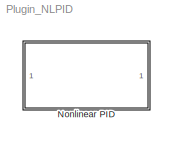
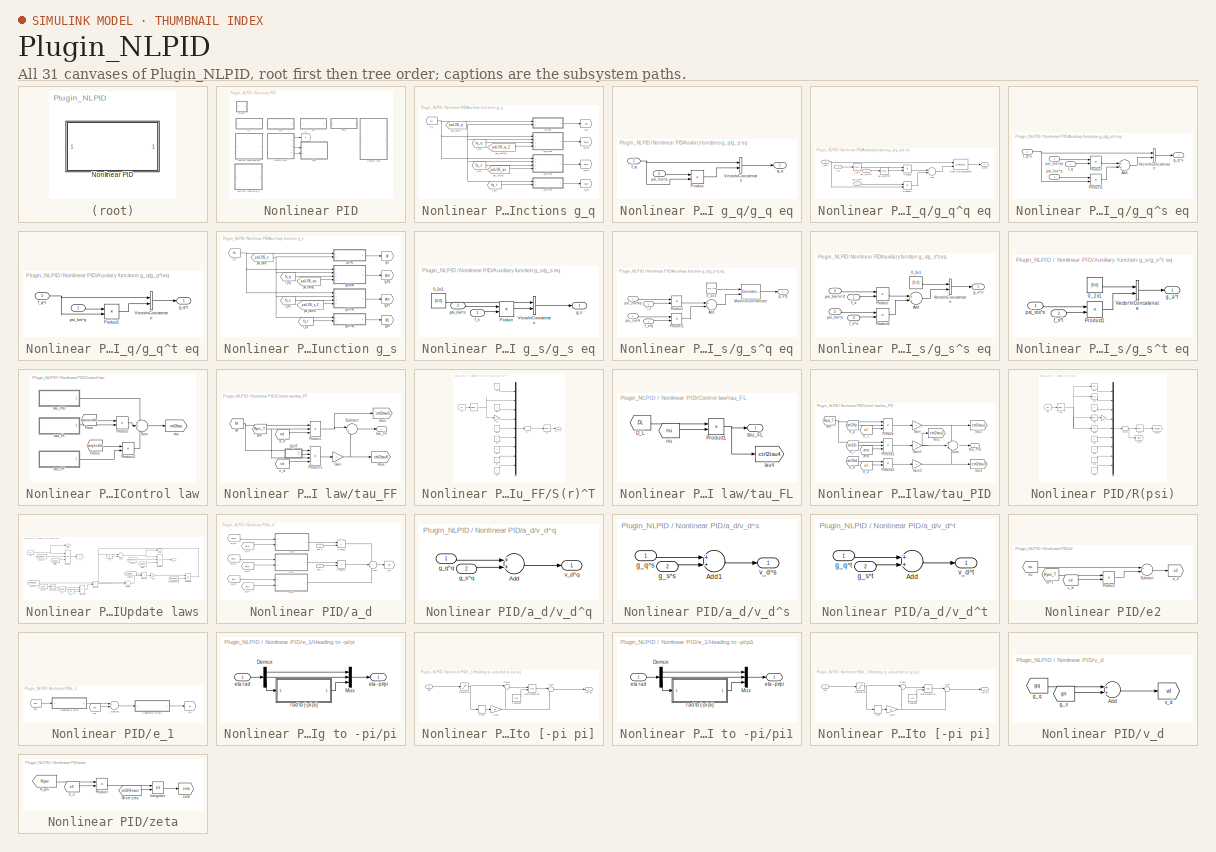
[diagram: thumbnail index - all 31 canvases of the model, root first then tree order]
MODEL Plugin_NLPID
KIND model
BLOCK [SubSystem] Nonlinear PID
  FunctionWithSeparateData = off
  MaskHideContents = off
  MinAlgLoopOccurrences = off
  Opaque = off
  Ports = []
  PropExecContextOutsideSubsystem = off
  RTWSystemCode = Auto
  RequestExecContextInheritance = off
BLOCK [SubSystem] Nonlinear PID/Auxilary functions g_q
  FunctionWithSeparateData = off
  MaskHideContents = off
  MinAlgLoopOccurrences = off
  Opaque = off
  Ports = []
  PropExecContextOutsideSubsystem = off
  RTWSystemCode = Auto
  RequestExecContextInheritance = off
BLOCK [From] Nonlinear PID/Auxilary functions g_q/f_q
  GotoTag = fq
  TagVisibility = global
BLOCK [From] Nonlinear PID/Auxilary functions g_q/f_q^q
  GotoTag = fq_q
  TagVisibility = global
BLOCK [From] Nonlinear PID/Auxilary functions g_q/f_q^s
  GotoTag = fq_s
  TagVisibility = global
BLOCK [From] Nonlinear PID/Auxilary functions g_q/f_q^t
  GotoTag = fq_t
  TagVisibility = global
BLOCK [Goto] Nonlinear PID/Auxilary functions g_q/g_q
  GotoTag = gq
  TagVisibility = global
BLOCK [SubSystem] Nonlinear PID/Auxilary functions g_q/g_q eq
  FunctionWithSeparateData = off
  MaskHideContents = off
  MinAlgLoopOccurrences = off
  Opaque = off
  Ports = [2, 1]
  PropExecContextOutsideSubsystem = off
  RTWSystemCode = Auto
  RequestExecContextInheritance = off
BLOCK [Product] Nonlinear PID/Auxilary functions g_q/g_q eq/Product
  InputSameDT = off
  Multiplication = Matrix(*)
  OutDataType = fixdt(1, 16)
  OutDataTypeMode = Inherit via internal rule
  OutDataTypeStr = Inherit: Inherit via internal rule
  OutScaling = 2^0
  Ports = [2, 1]
  SaturateOnIntegerOverflow = off
BLOCK [Concatenate] Nonlinear PID/Auxilary functions g_q/g_q eq/Vector\nConcatenate
  Mode = Vector
  Ports = [2, 1]
BLOCK [Inport] Nonlinear PID/Auxilary functions g_q/g_q eq/f_q
  IconDisplay = Port number
BLOCK [Outport] Nonlinear PID/Auxilary functions g_q/g_q eq/g_q
  IconDisplay = Port number
BLOCK [Inport] Nonlinear PID/Auxilary functions g_q/g_q eq/psi_los^q
  IconDisplay = Port number
  Port = 2
BLOCK [Goto] Nonlinear PID/Auxilary functions g_q/g_q^q
  GotoTag = gq_q
  TagVisibility = global
BLOCK [SubSystem] Nonlinear PID/Auxilary functions g_q/g_q^q eq
  FunctionWithSeparateData = off
  MaskHideContents = off
  MinAlgLoopOccurrences = off
  Opaque = off
  Ports = [4, 1]
  PropExecContextOutsideSubsystem = off
  RTWSystemCode = Auto
  RequestExecContextInheritance = off
BLOCK [Sum] Nonlinear PID/Auxilary functions g_q/g_q^q eq/Add
  InputSameDT = off
  OutDataType = fixdt(1, 16)
  OutDataTypeMode = Inherit via internal rule
  OutDataTypeStr = Inherit: Inherit via internal rule
  OutScaling = 2^-10
  Ports = [2, 1]
  SaturateOnIntegerOverflow = off
BLOCK [Concatenate] Nonlinear PID/Auxilary functions g_q/g_q^q eq/Matrix\nConcatenate
  Mode = Multidimensional array
  Ports = [2, 1]
BLOCK [Product] Nonlinear PID/Auxilary functions g_q/g_q^q eq/Product
  InputSameDT = off
  Multiplication = Matrix(*)
  OutDataType = fixdt(1, 16)
  OutDataTypeMode = Inherit via internal rule
  OutDataTypeStr = Inherit: Inherit via internal rule
  OutScaling = 2^0
  Ports = [2, 1]
  SaturateOnIntegerOverflow = off
BLOCK [Product] Nonlinear PID/Auxilary functions g_q/g_q^q eq/Product1
  InputSameDT = off
  Multiplication = Matrix(*)
  OutDataType = fixdt(1, 16)
  OutDataTypeMode = Inherit via internal rule
  OutDataTypeStr = Inherit: Inherit via internal rule
  OutScaling = 2^0
  Ports = [2, 1]
  SaturateOnIntegerOverflow = off
BLOCK [Inport] Nonlinear PID/Auxilary functions g_q/g_q^q eq/f_q
  IconDisplay = Port number
BLOCK [Reference] Nonlinear PID/Auxilary functions g_q/g_q^q eq/f_q^T  REF=dspmtrx3/Transpose
  FunctionWithSeparateData = off
  Hermitian = off
  Ports = [1, 1]
  RTWMemSecDataConstants = Inherit from model
  RTWMemSecDataInternal = Inherit from model
  RTWMemSecDataParameters = Inherit from model
  RTWMemSecFuncExecute = Inherit from model
  RTWMemSecFuncInitTerm = Inherit from model
  ShowPortLabels = FromPortIcon
  SourceBlock = dspmtrx3/Transpose
  SourceType = Transpose
  SystemSampleTime = -1
  overflowFlag = off
BLOCK [Inport] Nonlinear PID/Auxilary functions g_q/g_q^q eq/f_q^q
  IconDisplay = Port number
  Port = 3
BLOCK [Outport] Nonlinear PID/Auxilary functions g_q/g_q^q eq/g_q^q
  IconDisplay = Port number
BLOCK [Inport] Nonlinear PID/Auxilary functions g_q/g_q^q eq/psi_los^q
  IconDisplay = Port number
  Port = 2
BLOCK [Inport] Nonlinear PID/Auxilary functions g_q/g_q^q eq/psi_los^q^2
  IconDisplay = Port number
  Port = 4
BLOCK [Reference] Nonlinear PID/Auxilary functions g_q/g_q^q eq/psi_los^q^2T  REF=dspmtrx3/Transpose
  FunctionWithSeparateData = off
  Hermitian = off
  Ports = [1, 1]
  RTWMemSecDataConstants = Inherit from model
  RTWMemSecDataInternal = Inherit from model
  RTWMemSecDataParameters = Inherit from model
  RTWMemSecFuncExecute = Inherit from model
  RTWMemSecFuncInitTerm = Inherit from model
  ShowPortLabels = FromPortIcon
  SourceBlock = dspmtrx3/Transpose
  SourceType = Transpose
  SystemSampleTime = -1
  overflowFlag = off
BLOCK [Goto] Nonlinear PID/Auxilary functions g_q/g_q^s
  GotoTag = gq_s
  TagVisibility = global
BLOCK [SubSystem] Nonlinear PID/Auxilary functions g_q/g_q^s eq
  FunctionWithSeparateData = off
  MaskHideContents = off
  MinAlgLoopOccurrences = off
  Opaque = off
  Ports = [4, 1]
  PropExecContextOutsideSubsystem = off
  RTWSystemCode = Auto
  RequestExecContextInheritance = off
BLOCK [Sum] Nonlinear PID/Auxilary functions g_q/g_q^s eq/Add
  InputSameDT = off
  OutDataType = fixdt(1, 16)
  OutDataTypeMode = Inherit via internal rule
  OutDataTypeStr = Inherit: Inherit via internal rule
  OutScaling = 2^-10
  Ports = [2, 1]
  SaturateOnIntegerOverflow = off
BLOCK [Product] Nonlinear PID/Auxilary functions g_q/g_q^s eq/Product
  InputSameDT = off
  Multiplication = Matrix(*)
  OutDataType = fixdt(1, 16)
  OutDataTypeMode = Inherit via internal rule
  OutDataTypeStr = Inherit: Inherit via internal rule
  OutScaling = 2^0
  Ports = [2, 1]
  SaturateOnIntegerOverflow = off
BLOCK [Product] Nonlinear PID/Auxilary functions g_q/g_q^s eq/Product1
  InputSameDT = off
  Multiplication = Matrix(*)
  OutDataType = fixdt(1, 16)
  OutDataTypeMode = Inherit via internal rule
  OutDataTypeStr = Inherit: Inherit via internal rule
  OutScaling = 2^0
  Ports = [2, 1]
  SaturateOnIntegerOverflow = off
BLOCK [Concatenate] Nonlinear PID/Auxilary functions g_q/g_q^s eq/Vector\nConcatenate
  Mode = Vector
  Ports = [2, 1]
BLOCK [Inport] Nonlinear PID/Auxilary functions g_q/g_q^s eq/f_q
  IconDisplay = Port number
BLOCK [Inport] Nonlinear PID/Auxilary functions g_q/g_q^s eq/f_q^s
  IconDisplay = Port number
  Port = 3
BLOCK [Outport] Nonlinear PID/Auxilary functions g_q/g_q^s eq/g_q^s
  IconDisplay = Port number
BLOCK [Inport] Nonlinear PID/Auxilary functions g_q/g_q^s eq/psi_los^q
  IconDisplay = Port number
  Port = 2
BLOCK [Inport] Nonlinear PID/Auxilary functions g_q/g_q^s eq/psi_los^qs
  IconDisplay = Port number
  Port = 4
BLOCK [Goto] Nonlinear PID/Auxilary functions g_q/g_q^t
  GotoTag = gq_t
  TagVisibility = global
BLOCK [SubSystem] Nonlinear PID/Auxilary functions g_q/g_q^t eq
  FunctionWithSeparateData = off
  MaskHideContents = off
  MinAlgLoopOccurrences = off
  Opaque = off
  Ports = [2, 1]
  PropExecContextOutsideSubsystem = off
  RTWSystemCode = Auto
  RequestExecContextInheritance = off
BLOCK [Product] Nonlinear PID/Auxilary functions g_q/g_q^t eq/Product1
  InputSameDT = off
  Multiplication = Matrix(*)
  OutDataType = fixdt(1, 16)
  OutDataTypeMode = Inherit via internal rule
  OutDataTypeStr = Inherit: Inherit via internal rule
  OutScaling = 2^0
  Ports = [2, 1]
  SaturateOnIntegerOverflow = off
BLOCK [Concatenate] Nonlinear PID/Auxilary functions g_q/g_q^t eq/Vector\nConcatenate
  Mode = Vector
  Ports = [2, 1]
BLOCK [Inport] Nonlinear PID/Auxilary functions g_q/g_q^t eq/f_q^t
  IconDisplay = Port number
  Port = 2
BLOCK [Outport] Nonlinear PID/Auxilary functions g_q/g_q^t eq/g_q^t
  IconDisplay = Port number
BLOCK [Inport] Nonlinear PID/Auxilary functions g_q/g_q^t eq/psi_los^q
  IconDisplay = Port number
BLOCK [From] Nonlinear PID/Auxilary functions g_q/psi_los^q
  GotoTag = psiLOS_q
  TagVisibility = global
BLOCK [From] Nonlinear PID/Auxilary functions g_q/psi_los^q^2
  GotoTag = psiLOS_q_2
  TagVisibility = global
BLOCK [From] Nonlinear PID/Auxilary functions g_q/psi_los^qs
  GotoTag = psiLOS_qs
  TagVisibility = global
BLOCK [SubSystem] Nonlinear PID/Auxiliary function g_s
  FunctionWithSeparateData = off
  MaskHideContents = off
  MinAlgLoopOccurrences = off
  Opaque = off
  Ports = []
  PropExecContextOutsideSubsystem = off
  RTWSystemCode = Auto
  RequestExecContextInheritance = off
BLOCK [From] Nonlinear PID/Auxiliary function g_s/f_s
  GotoTag = fs
  TagVisibility = global
BLOCK [From] Nonlinear PID/Auxiliary function g_s/f_s^q
  GotoTag = fs_q
  TagVisibility = global
BLOCK [From] Nonlinear PID/Auxiliary function g_s/f_s^s
  GotoTag = fs_s
  TagVisibility = global
BLOCK [From] Nonlinear PID/Auxiliary function g_s/f_s^t
  GotoTag = fs_t
  TagVisibility = global
BLOCK [Goto] Nonlinear PID/Auxiliary function g_s/g_s
  GotoTag = gs
  TagVisibility = global
BLOCK [SubSystem] Nonlinear PID/Auxiliary function g_s/g_s eq
  FunctionWithSeparateData = off
  MaskHideContents = off
  MinAlgLoopOccurrences = off
  Opaque = off
  Ports = [2, 1]
  PropExecContextOutsideSubsystem = off
  RTWSystemCode = Auto
  RequestExecContextInheritance = off
BLOCK [Constant] Nonlinear PID/Auxiliary function g_s/g_s eq/0_2x1
  OutDataType = fixdt(1, 16)
  OutScaling = 2^0
  Value = [0;0]
  VectorParams1D = off
BLOCK [Product] Nonlinear PID/Auxiliary function g_s/g_s eq/Product
  InputSameDT = off
  Multiplication = Matrix(*)
  OutDataType = fixdt(1, 16)
  OutDataTypeMode = Inherit via internal rule
  OutDataTypeStr = Inherit: Inherit via internal rule
  OutScaling = 2^0
  Ports = [2, 1]
  SaturateOnIntegerOverflow = off
BLOCK [Concatenate] Nonlinear PID/Auxiliary function g_s/g_s eq/Vector\nConcatenate
  Mode = Vector
  Ports = [2, 1]
BLOCK [Inport] Nonlinear PID/Auxiliary function g_s/g_s eq/f_s
  IconDisplay = Port number
BLOCK [Outport] Nonlinear PID/Auxiliary function g_s/g_s eq/g_s
  IconDisplay = Port number
BLOCK [Inport] Nonlinear PID/Auxiliary function g_s/g_s eq/psi_los^s
  IconDisplay = Port number
  Port = 2
BLOCK [Goto] Nonlinear PID/Auxiliary function g_s/g_s^q
  GotoTag = gs_q
  TagVisibility = global
BLOCK [SubSystem] Nonlinear PID/Auxiliary function g_s/g_s^q eq
  FunctionWithSeparateData = off
  MaskHideContents = off
  MinAlgLoopOccurrences = off
  Opaque = off
  Ports = [4, 1]
  PropExecContextOutsideSubsystem = off
  RTWSystemCode = Auto
  RequestExecContextInheritance = off
BLOCK [Constant] Nonlinear PID/Auxiliary function g_s/g_s^q eq/0_2x2
  OutDataType = fixdt(1, 16)
  OutScaling = 2^0
  Value = [0 0; 0 0]
  VectorParams1D = off
BLOCK [Sum] Nonlinear PID/Auxiliary function g_s/g_s^q eq/Add
  InputSameDT = off
  OutDataType = fixdt(1, 16)
  OutDataTypeMode = Inherit via internal rule
  OutDataTypeStr = Inherit: Inherit via internal rule
  OutScaling = 2^-10
  Ports = [2, 1]
  SaturateOnIntegerOverflow = off
BLOCK [Concatenate] Nonlinear PID/Auxiliary function g_s/g_s^q eq/Matrix\nConcatenate
  Mode = Multidimensional array
  Ports = [2, 1]
BLOCK [Product] Nonlinear PID/Auxiliary function g_s/g_s^q eq/Product
  InputSameDT = off
  OutDataType = fixdt(1, 16)
  OutDataTypeMode = Inherit via internal rule
  OutDataTypeStr = Inherit: Inherit via internal rule
  OutScaling = 2^0
  Ports = [2, 1]
  SaturateOnIntegerOverflow = off
BLOCK [Product] Nonlinear PID/Auxiliary function g_s/g_s^q eq/Product1
  InputSameDT = off
  OutDataType = fixdt(1, 16)
  OutDataTypeMode = Inherit via internal rule
  OutDataTypeStr = Inherit: Inherit via internal rule
  OutScaling = 2^0
  Ports = [2, 1]
  SaturateOnIntegerOverflow = off
BLOCK [Inport] Nonlinear PID/Auxiliary function g_s/g_s^q eq/f_s
  IconDisplay = Port number
BLOCK [Inport] Nonlinear PID/Auxiliary function g_s/g_s^q eq/f_s^q
  IconDisplay = Port number
  Port = 3
BLOCK [Outport] Nonlinear PID/Auxiliary function g_s/g_s^q eq/g_s^q
  IconDisplay = Port number
BLOCK [Inport] Nonlinear PID/Auxiliary function g_s/g_s^q eq/psi_los^s
  IconDisplay = Port number
  Port = 2
BLOCK [Inport] Nonlinear PID/Auxiliary function g_s/g_s^q eq/psi_los^sq
  IconDisplay = Port number
  Port = 4
BLOCK [Goto] Nonlinear PID/Auxiliary function g_s/g_s^s
  GotoTag = gs_s
  TagVisibility = global
BLOCK [SubSystem] Nonlinear PID/Auxiliary function g_s/g_s^s eq
  FunctionWithSeparateData = off
  MaskHideContents = off
  MinAlgLoopOccurrences = off
  Opaque = off
  Ports = [4, 1]
  PropExecContextOutsideSubsystem = off
  RTWSystemCode = Auto
  RequestExecContextInheritance = off
BLOCK [Constant] Nonlinear PID/Auxiliary function g_s/g_s^s eq/0_2x1
  OutDataType = fixdt(1, 16)
  OutScaling = 2^0
  Value = [0;0]
  VectorParams1D = off
BLOCK [Sum] Nonlinear PID/Auxiliary function g_s/g_s^s eq/Add
  InputSameDT = off
  OutDataType = fixdt(1, 16)
  OutDataTypeMode = Inherit via internal rule
  OutDataTypeStr = Inherit: Inherit via internal rule
  OutScaling = 2^-10
  Ports = [2, 1]
  SaturateOnIntegerOverflow = off
BLOCK [Product] Nonlinear PID/Auxiliary function g_s/g_s^s eq/Product
  InputSameDT = off
  OutDataType = fixdt(1, 16)
  OutDataTypeMode = Inherit via internal rule
  OutDataTypeStr = Inherit: Inherit via internal rule
  OutScaling = 2^0
  Ports = [2, 1]
  SaturateOnIntegerOverflow = off
BLOCK [Product] Nonlinear PID/Auxiliary function g_s/g_s^s eq/Product1
  InputSameDT = off
  OutDataType = fixdt(1, 16)
  OutDataTypeMode = Inherit via internal rule
  OutDataTypeStr = Inherit: Inherit via internal rule
  OutScaling = 2^0
  Ports = [2, 1]
  SaturateOnIntegerOverflow = off
BLOCK [Concatenate] Nonlinear PID/Auxiliary function g_s/g_s^s eq/Vector\nConcatenate
  Mode = Vector
  Ports = [2, 1]
BLOCK [Inport] Nonlinear PID/Auxiliary function g_s/g_s^s eq/f_s
  IconDisplay = Port number
BLOCK [Inport] Nonlinear PID/Auxiliary function g_s/g_s^s eq/f_s^s
  IconDisplay = Port number
  Port = 3
BLOCK [Outport] Nonlinear PID/Auxiliary function g_s/g_s^s eq/g_s^s
  IconDisplay = Port number
BLOCK [Inport] Nonlinear PID/Auxiliary function g_s/g_s^s eq/psi_los^s
  IconDisplay = Port number
  Port = 2
BLOCK [Inport] Nonlinear PID/Auxiliary function g_s/g_s^s eq/psi_los^s^2
  IconDisplay = Port number
  Port = 4
BLOCK [Goto] Nonlinear PID/Auxiliary function g_s/g_s^t
  GotoTag = gs_t
  TagVisibility = global
BLOCK [SubSystem] Nonlinear PID/Auxiliary function g_s/g_s^t eq
  FunctionWithSeparateData = off
  MaskHideContents = off
  MinAlgLoopOccurrences = off
  Opaque = off
  Ports = [2, 1]
  PropExecContextOutsideSubsystem = off
  RTWSystemCode = Auto
  RequestExecContextInheritance = off
BLOCK [Constant] Nonlinear PID/Auxiliary function g_s/g_s^t eq/0_2x1
  OutDataType = fixdt(1, 16)
  OutScaling = 2^0
  Value = [0;0]
  VectorParams1D = off
BLOCK [Product] Nonlinear PID/Auxiliary function g_s/g_s^t eq/Product1
  InputSameDT = off
  Multiplication = Matrix(*)
  OutDataType = fixdt(1, 16)
  OutDataTypeMode = Inherit via internal rule
  OutDataTypeStr = Inherit: Inherit via internal rule
  OutScaling = 2^0
  Ports = [2, 1]
  SaturateOnIntegerOverflow = off
BLOCK [Concatenate] Nonlinear PID/Auxiliary function g_s/g_s^t eq/Vector\nConcatenate
  Mode = Vector
  Ports = [2, 1]
BLOCK [Inport] Nonlinear PID/Auxiliary function g_s/g_s^t eq/f_s^t
  IconDisplay = Port number
  Port = 2
BLOCK [Outport] Nonlinear PID/Auxiliary function g_s/g_s^t eq/g_a^t
  IconDisplay = Port number
BLOCK [Inport] Nonlinear PID/Auxiliary function g_s/g_s^t eq/psi_los^s
  IconDisplay = Port number
BLOCK [From] Nonlinear PID/Auxiliary function g_s/psi_los^s
  GotoTag = psiLOS_s
  TagVisibility = global
BLOCK [From] Nonlinear PID/Auxiliary function g_s/psi_los^s^2
  GotoTag = psiLOS_s_2
  TagVisibility = global
BLOCK [From] Nonlinear PID/Auxiliary function g_s/psi_los^sq
  GotoTag = psiLOS_qs
  TagVisibility = global
BLOCK [SubSystem] Nonlinear PID/Control law
  FunctionWithSeparateData = off
  MaskHideContents = off
  MinAlgLoopOccurrences = off
  Opaque = off
  Ports = []
  PropExecContextOutsideSubsystem = off
  RTWSystemCode = Auto
  RequestExecContextInheritance = off
BLOCK [From] Nonlinear PID/Control law/From
  GotoTag = tauxscale
  TagVisibility = global
BLOCK [From] Nonlinear PID/Control law/From1
  GotoTag = tauyscale
  TagVisibility = global
BLOCK [Product] Nonlinear PID/Control law/Product
  InputSameDT = off
  OutDataType = fixdt(1, 16)
  OutDataTypeMode = Inherit via internal rule
  OutDataTypeStr = Inherit: Inherit via internal rule
  OutScaling = 2^0
  Ports = [2, 1]
  SaturateOnIntegerOverflow = off
BLOCK [Product] Nonlinear PID/Control law/Product1
  InputSameDT = off
  OutDataType = fixdt(1, 16)
  OutDataTypeMode = Inherit via internal rule
  OutDataTypeStr = Inherit: Inherit via internal rule
  OutScaling = 2^0
  Ports = [2, 1]
  SaturateOnIntegerOverflow = off
BLOCK [Sum] Nonlinear PID/Control law/Sum
  IconShape = round
  InputSameDT = off
  Inputs = +++
  OutDataType = fixdt(1, 16)
  OutDataTypeMode = Inherit via internal rule
  OutDataTypeStr = Inherit: Inherit via internal rule
  OutScaling = 2^-10
  Ports = [3, 1]
  SaturateOnIntegerOverflow = off
BLOCK [Goto] Nonlinear PID/Control law/tau
  GotoTag = ctrl2tau
  TagVisibility = global
BLOCK [SubSystem] Nonlinear PID/Control law/tau_FF
  FunctionWithSeparateData = off
  MaskHideContents = off
  MinAlgLoopOccurrences = off
  Opaque = off
  Ports = [0, 1]
  PropExecContextOutsideSubsystem = off
  RTWSystemCode = Auto
  RequestExecContextInheritance = off
BLOCK [Gain] Nonlinear PID/Control law/tau_FF/Gain
  Gain = -1
  OutDataType = fixdt(1, 16)
  OutDataTypeMode = Inherit via internal rule
  OutDataTypeStr = Inherit: Inherit via internal rule
  OutScaling = 2^0
  ParamDataTypeStr = Inherit: Inherit via internal rule
  ParameterDataType = fixdt(1, 16)
  ParameterDataTypeMode = Inherit via internal rule
  ParameterScaling = 2^0
  SaturateOnIntegerOverflow = off
BLOCK [From] Nonlinear PID/Control law/tau_FF/M
  GotoTag = M
  TagVisibility = global
BLOCK [Product] Nonlinear PID/Control law/tau_FF/Product
  InputSameDT = off
  Inputs = 3
  Multiplication = Matrix(*)
  OutDataType = fixdt(1, 16)
  OutDataTypeMode = Inherit via internal rule
  OutDataTypeStr = Inherit: Inherit via internal rule
  OutScaling = 2^0
  Ports = [3, 1]
  SaturateOnIntegerOverflow = off
BLOCK [Product] Nonlinear PID/Control law/tau_FF/Product1
  InputSameDT = off
  Inputs = 4
  Multiplication = Matrix(*)
  OutDataType = fixdt(1, 16)
  OutDataTypeMode = Inherit via internal rule
  OutDataTypeStr = Inherit: Inherit via internal rule
  OutScaling = 2^0
  Ports = [4, 1]
  SaturateOnIntegerOverflow = off
BLOCK [From] Nonlinear PID/Control law/tau_FF/R^T
  GotoTag = Rpsi_T
  TagVisibility = global
BLOCK [SubSystem] Nonlinear PID/Control law/tau_FF/S(r)^T
  FunctionWithSeparateData = off
  MaskHideContents = off
  MinAlgLoopOccurrences = off
  Opaque = off
  Ports = [0, 1]
  PropExecContextOutsideSubsystem = off
  RTWSystemCode = Auto
  RequestExecContextInheritance = off
BLOCK [Mux] Nonlinear PID/Control law/tau_FF/S(r)^T/Mux
  DisplayOption = bar
  Inputs = 9
  Ports = [9, 1]
BLOCK [Constant] Nonlinear PID/Control law/tau_FF/S(r)^T/R31
  Value = 0
BLOCK [Reshape] Nonlinear PID/Control law/tau_FF/S(r)^T/S(r)
  OutputDimensionality = Customize
  OutputDimensions = [3,3]
  Ports = [1, 1]
BLOCK [Outport] Nonlinear PID/Control law/tau_FF/S(r)^T/S(r)^T
  IconDisplay = Port number
BLOCK [Constant] Nonlinear PID/Control law/tau_FF/S(r)^T/S11
  Value = 0
BLOCK [Gain] Nonlinear PID/Control law/tau_FF/S(r)^T/S12
  OutDataType = fixdt(1, 16)
  OutDataTypeMode = Inherit via internal rule
  OutDataTypeStr = Inherit: Inherit via internal rule
  OutScaling = 2^0
  ParamDataTypeStr = Inherit: Inherit via internal rule
  ParameterDataType = fixdt(1, 16)
  ParameterDataTypeMode = Inherit via internal rule
  ParameterScaling = 2^0
  SaturateOnIntegerOverflow = off
BLOCK [Constant] Nonlinear PID/Control law/tau_FF/S(r)^T/S13
  Value = 0
BLOCK [Constant] Nonlinear PID/Control law/tau_FF/S(r)^T/S22
  Value = 0
BLOCK [Constant] Nonlinear PID/Control law/tau_FF/S(r)^T/S23
  Value = 0
BLOCK [Constant] Nonlinear PID/Control law/tau_FF/S(r)^T/S32
  Value = 0
BLOCK [Constant] Nonlinear PID/Control law/tau_FF/S(r)^T/S33
BLOCK [Reference] Nonlinear PID/Control law/tau_FF/S(r)^T/S^T  REF=dspmtrx3/Transpose
  FunctionWithSeparateData = off
  Hermitian = off
  Ports = [1, 1]
  RTWMemSecDataConstants = Inherit from model
  RTWMemSecDataInternal = Inherit from model
  RTWMemSecDataParameters = Inherit from model
  RTWMemSecFuncExecute = Inherit from model
  RTWMemSecFuncInitTerm = Inherit from model
  ShowPortLabels = FromPortIcon
  SourceBlock = dspmtrx3/Transpose
  SourceType = Transpose
  SystemSampleTime = -1
  overflowFlag = off
BLOCK [From] Nonlinear PID/Control law/tau_FF/S(r)^T/nu
  GotoTag = nu
  TagVisibility = global
BLOCK [Selector] Nonlinear PID/Control law/tau_FF/S(r)^T/r
  IndexOptions = Index vector (dialog)
  Indices = [3]
  InputPortWidth = 3
  OutputSizes = 1
  Ports = [1, 1]
BLOCK [Sum] Nonlinear PID/Control law/tau_FF/Subtract
  IconShape = round
  InputSameDT = off
  Inputs = |++
  OutDataType = fixdt(1, 16)
  OutDataTypeMode = Inherit via internal rule
  OutDataTypeStr = Inherit: Inherit via internal rule
  OutScaling = 2^-10
  Ports = [2, 1]
  SaturateOnIntegerOverflow = off
BLOCK [From] Nonlinear PID/Control law/tau_FF/a_d
  GotoTag = ad
  TagVisibility = global
BLOCK [Goto] Nonlinear PID/Control law/tau_FF/tau5
  GotoTag = ctrl2tau5
  TagVisibility = global
BLOCK [Goto] Nonlinear PID/Control law/tau_FF/tau6
  GotoTag = ctrl2tau6
  TagVisibility = global
BLOCK [Outport] Nonlinear PID/Control law/tau_FF/tau_FF
  IconDisplay = Port number
BLOCK [From] Nonlinear PID/Control law/tau_FF/v_d
  GotoTag = vd
  TagVisibility = global
BLOCK [SubSystem] Nonlinear PID/Control law/tau_FL
  FunctionWithSeparateData = off
  MaskHideContents = off
  MinAlgLoopOccurrences = off
  Opaque = off
  Ports = [0, 1]
  PropExecContextOutsideSubsystem = off
  RTWSystemCode = Auto
  RequestExecContextInheritance = off
BLOCK [From] Nonlinear PID/Control law/tau_FL/D_L
  GotoTag = DL
  TagVisibility = global
BLOCK [Product] Nonlinear PID/Control law/tau_FL/Product1
  InputSameDT = off
  Multiplication = Matrix(*)
  OutDataType = fixdt(1, 16)
  OutDataTypeMode = Inherit via internal rule
  OutDataTypeStr = Inherit: Inherit via internal rule
  OutScaling = 2^0
  Ports = [2, 1]
  SaturateOnIntegerOverflow = off
BLOCK [From] Nonlinear PID/Control law/tau_FL/nu
  GotoTag = nu
  TagVisibility = global
BLOCK [Goto] Nonlinear PID/Control law/tau_FL/tau4
  GotoTag = ctrl2tau4
  TagVisibility = global
BLOCK [Outport] Nonlinear PID/Control law/tau_FL/tau_FL
  IconDisplay = Port number
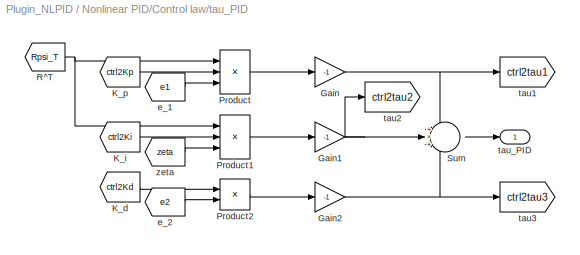
BLOCK [SubSystem] Nonlinear PID/Control law/tau_PID
  FunctionWithSeparateData = off
  MaskHideContents = off
  MinAlgLoopOccurrences = off
  Opaque = off
  Ports = [0, 1]
  PropExecContextOutsideSubsystem = off
  RTWSystemCode = Auto
  RequestExecContextInheritance = off
BLOCK [Gain] Nonlinear PID/Control law/tau_PID/Gain
  Gain = -1
  OutDataType = fixdt(1, 16)
  OutDataTypeMode = Inherit via internal rule
  OutDataTypeStr = Inherit: Inherit via internal rule
  OutScaling = 2^0
  ParamDataTypeStr = Inherit: Inherit via internal rule
  ParameterDataType = fixdt(1, 16)
  ParameterDataTypeMode = Inherit via internal rule
  ParameterScaling = 2^0
  SaturateOnIntegerOverflow = off
BLOCK [Gain] Nonlinear PID/Control law/tau_PID/Gain1
  Gain = -1
  OutDataType = fixdt(1, 16)
  OutDataTypeMode = Inherit via internal rule
  OutDataTypeStr = Inherit: Inherit via internal rule
  OutScaling = 2^0
  ParamDataTypeStr = Inherit: Inherit via internal rule
  ParameterDataType = fixdt(1, 16)
  ParameterDataTypeMode = Inherit via internal rule
  ParameterScaling = 2^0
  SaturateOnIntegerOverflow = off
BLOCK [Gain] Nonlinear PID/Control law/tau_PID/Gain2
  Gain = -1
  OutDataType = fixdt(1, 16)
  OutDataTypeMode = Inherit via internal rule
  OutDataTypeStr = Inherit: Inherit via internal rule
  OutScaling = 2^0
  ParamDataTypeStr = Inherit: Inherit via internal rule
  ParameterDataType = fixdt(1, 16)
  ParameterDataTypeMode = Inherit via internal rule
  ParameterScaling = 2^0
  SaturateOnIntegerOverflow = off
BLOCK [From] Nonlinear PID/Control law/tau_PID/K_d
  GotoTag = ctrl2Kd
  TagVisibility = global
BLOCK [From] Nonlinear PID/Control law/tau_PID/K_i
  GotoTag = ctrl2Ki
  TagVisibility = global
BLOCK [From] Nonlinear PID/Control law/tau_PID/K_p
  GotoTag = ctrl2Kp
  TagVisibility = global
BLOCK [Product] Nonlinear PID/Control law/tau_PID/Product
  InputSameDT = off
  Inputs = 3
  Multiplication = Matrix(*)
  OutDataType = fixdt(1, 16)
  OutDataTypeMode = Inherit via internal rule
  OutDataTypeStr = Inherit: Inherit via internal rule
  OutScaling = 2^0
  Ports = [3, 1]
  SaturateOnIntegerOverflow = off
BLOCK [Product] Nonlinear PID/Control law/tau_PID/Product1
  InputSameDT = off
  Inputs = 3
  Multiplication = Matrix(*)
  OutDataType = fixdt(1, 16)
  OutDataTypeMode = Inherit via internal rule
  OutDataTypeStr = Inherit: Inherit via internal rule
  OutScaling = 2^0
  Ports = [3, 1]
  SaturateOnIntegerOverflow = off
BLOCK [Product] Nonlinear PID/Control law/tau_PID/Product2
  InputSameDT = off
  Multiplication = Matrix(*)
  OutDataType = fixdt(1, 16)
  OutDataTypeMode = Inherit via internal rule
  OutDataTypeStr = Inherit: Inherit via internal rule
  OutScaling = 2^0
  Ports = [2, 1]
  SaturateOnIntegerOverflow = off
BLOCK [From] Nonlinear PID/Control law/tau_PID/R^T
  GotoTag = Rpsi_T
  TagVisibility = global
BLOCK [Sum] Nonlinear PID/Control law/tau_PID/Sum
  IconShape = round
  InputSameDT = off
  Inputs = +++
  OutDataType = fixdt(1, 16)
  OutDataTypeMode = Inherit via internal rule
  OutDataTypeStr = Inherit: Inherit via internal rule
  OutScaling = 2^-10
  Ports = [3, 1]
  SaturateOnIntegerOverflow = off
BLOCK [From] Nonlinear PID/Control law/tau_PID/e_1
  GotoTag = e1
  TagVisibility = global
BLOCK [From] Nonlinear PID/Control law/tau_PID/e_2
  GotoTag = e2
  TagVisibility = global
BLOCK [Goto] Nonlinear PID/Control law/tau_PID/tau1
  GotoTag = ctrl2tau1
  TagVisibility = global
BLOCK [Goto] Nonlinear PID/Control law/tau_PID/tau2
  GotoTag = ctrl2tau2
  TagVisibility = global
BLOCK [Goto] Nonlinear PID/Control law/tau_PID/tau3
  GotoTag = ctrl2tau3
  TagVisibility = global
BLOCK [Outport] Nonlinear PID/Control law/tau_PID/tau_PID
  IconDisplay = Port number
BLOCK [From] Nonlinear PID/Control law/tau_PID/zeta
  GotoTag = zeta
  TagVisibility = global
BLOCK [SubSystem] Nonlinear PID/R(psi)
  FunctionWithSeparateData = off
  MaskHideContents = off
  MinAlgLoopOccurrences = off
  Opaque = off
  Ports = []
  PropExecContextOutsideSubsystem = off
  RTWSystemCode = Auto
  RequestExecContextInheritance = off
BLOCK [Gain] Nonlinear PID/R(psi)/-1
  Gain = -1
  OutDataType = fixdt(1, 16)
  OutDataTypeMode = Inherit via internal rule
  OutDataTypeStr = Inherit: Inherit via internal rule
  OutScaling = 2^0
  ParamDataTypeStr = Inherit: Inherit via internal rule
  ParameterDataType = fixdt(1, 16)
  ParameterDataTypeMode = Inherit via internal rule
  ParameterScaling = 2^0
  SaturateOnIntegerOverflow = off
BLOCK [Mux] Nonlinear PID/R(psi)/Mux
  DisplayOption = bar
  Inputs = 9
  Ports = [9, 1]
BLOCK [Reshape] Nonlinear PID/R(psi)/R(psi)
  OutputDimensionality = Customize
  OutputDimensions = [3,3]
  Ports = [1, 1]
BLOCK [Trigonometry] Nonlinear PID/R(psi)/R11
  Operator = cos
  Ports = [1, 1]
BLOCK [Trigonometry] Nonlinear PID/R(psi)/R12
  Ports = [1, 1]
BLOCK [Constant] Nonlinear PID/R(psi)/R13
  Value = 0
BLOCK [Trigonometry] Nonlinear PID/R(psi)/R21
  Ports = [1, 1]
BLOCK [Trigonometry] Nonlinear PID/R(psi)/R22
  Operator = cos
  Ports = [1, 1]
BLOCK [Constant] Nonlinear PID/R(psi)/R23
  Value = 0
BLOCK [Constant] Nonlinear PID/R(psi)/R31
  Value = 0
BLOCK [Constant] Nonlinear PID/R(psi)/R32
  Value = 0
BLOCK [Constant] Nonlinear PID/R(psi)/R33
BLOCK [Reference] Nonlinear PID/R(psi)/R^T  REF=dspmtrx3/Transpose
  FunctionWithSeparateData = off
  Hermitian = off
  Ports = [1, 1]
  RTWMemSecDataConstants = Inherit from model
  RTWMemSecDataInternal = Inherit from model
  RTWMemSecDataParameters = Inherit from model
  RTWMemSecFuncExecute = Inherit from model
  RTWMemSecFuncInitTerm = Inherit from model
  ShowPortLabels = FromPortIcon
  SourceBlock = dspmtrx3/Transpose
  SourceType = Transpose
  SystemSampleTime = -1
  overflowFlag = off
BLOCK [Goto] Nonlinear PID/R(psi)/R_psi
  GotoTag = Rpsi
  TagVisibility = global
BLOCK [Goto] Nonlinear PID/R(psi)/R_psi_T
  GotoTag = Rpsi_T
  TagVisibility = global
BLOCK [From] Nonlinear PID/R(psi)/eta
  GotoTag = eta
  TagVisibility = global
BLOCK [Selector] Nonlinear PID/R(psi)/psi
  IndexOptions = Index vector (dialog)
  Indices = [3]
  InputPortWidth = 3
  OutputSizes = 1
  Ports = [1, 1]
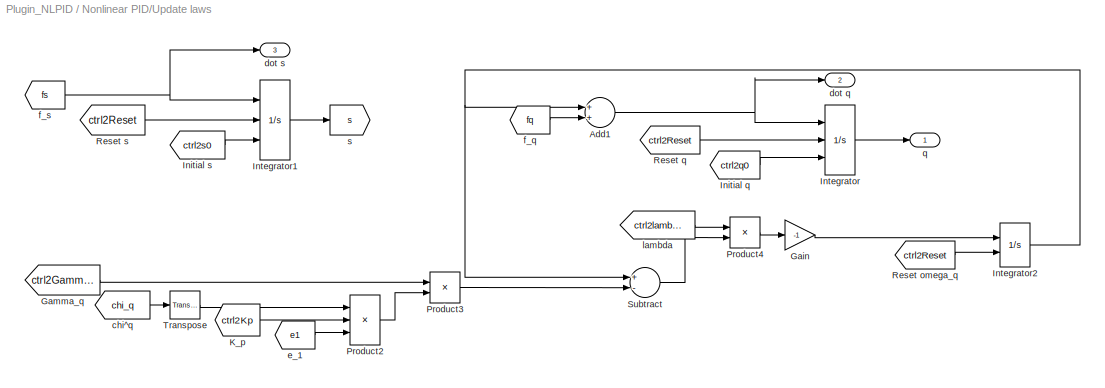
BLOCK [SubSystem] Nonlinear PID/Update laws
  FunctionWithSeparateData = off
  MaskHideContents = off
  MinAlgLoopOccurrences = off
  Opaque = off
  Ports = [0, 3]
  PropExecContextOutsideSubsystem = off
  RTWSystemCode = Auto
  RequestExecContextInheritance = off
BLOCK [Sum] Nonlinear PID/Update laws/Add1
  InputSameDT = off
  OutDataType = fixdt(1, 16)
  OutDataTypeMode = Inherit via internal rule
  OutDataTypeStr = Inherit: Inherit via internal rule
  OutScaling = 2^-10
  Ports = [2, 1]
  SaturateOnIntegerOverflow = off
BLOCK [Gain] Nonlinear PID/Update laws/Gain
  Gain = -1
  OutDataType = fixdt(1, 16)
  OutDataTypeMode = Inherit via internal rule
  OutDataTypeStr = Inherit: Inherit via internal rule
  OutScaling = 2^0
  ParamDataTypeStr = Inherit: Inherit via internal rule
  ParameterDataType = fixdt(1, 16)
  ParameterDataTypeMode = Inherit via internal rule
  ParameterScaling = 2^0
  SaturateOnIntegerOverflow = off
BLOCK [From] Nonlinear PID/Update laws/Gamma_q
  GotoTag = ctrl2Gammaq
  TagVisibility = global
BLOCK [From] Nonlinear PID/Update laws/Initial q
  GotoTag = ctrl2q0
  TagVisibility = global
BLOCK [From] Nonlinear PID/Update laws/Initial s
  GotoTag = ctrl2s0
  TagVisibility = global
BLOCK [Integrator] Nonlinear PID/Update laws/Integrator
  ExternalReset = level
  InitialConditionSource = external
  Ports = [3, 1]
BLOCK [Integrator] Nonlinear PID/Update laws/Integrator1
  ExternalReset = level
  InitialCondition = 250
  InitialConditionSource = external
  Ports = [3, 1]
BLOCK [Integrator] Nonlinear PID/Update laws/Integrator2
  ExternalReset = level
  Ports = [2, 1]
BLOCK [From] Nonlinear PID/Update laws/K_p
  GotoTag = ctrl2Kp
  TagVisibility = global
BLOCK [Product] Nonlinear PID/Update laws/Product2
  InputSameDT = off
  Inputs = 3
  Multiplication = Matrix(*)
  OutDataType = fixdt(1, 16)
  OutDataTypeMode = Inherit via internal rule
  OutDataTypeStr = Inherit: Inherit via internal rule
  OutScaling = 2^0
  Ports = [3, 1]
  SaturateOnIntegerOverflow = off
BLOCK [Product] Nonlinear PID/Update laws/Product3
  InputSameDT = off
  Multiplication = Matrix(*)
  OutDataType = fixdt(1, 16)
  OutDataTypeMode = Inherit via internal rule
  OutDataTypeStr = Inherit: Inherit via internal rule
  OutScaling = 2^0
  Ports = [2, 1]
  SaturateOnIntegerOverflow = off
BLOCK [Product] Nonlinear PID/Update laws/Product4
  InputSameDT = off
  OutDataType = fixdt(1, 16)
  OutDataTypeMode = Inherit via internal rule
  OutDataTypeStr = Inherit: Inherit via internal rule
  OutScaling = 2^0
  Ports = [2, 1]
  SaturateOnIntegerOverflow = off
BLOCK [From] Nonlinear PID/Update laws/Reset omega_q
  GotoTag = ctrl2Reset
  TagVisibility = global
BLOCK [From] Nonlinear PID/Update laws/Reset q
  GotoTag = ctrl2Reset
  TagVisibility = global
BLOCK [From] Nonlinear PID/Update laws/Reset s
  GotoTag = ctrl2Reset
  TagVisibility = global
BLOCK [Sum] Nonlinear PID/Update laws/Subtract
  InputSameDT = off
  Inputs = +-
  OutDataType = fixdt(1, 16)
  OutDataTypeMode = Inherit via internal rule
  OutDataTypeStr = Inherit: Inherit via internal rule
  OutScaling = 2^-10
  Ports = [2, 1]
  SaturateOnIntegerOverflow = off
BLOCK [Reference] Nonlinear PID/Update laws/Transpose  REF=dspmtrx3/Transpose
  FunctionWithSeparateData = off
  Hermitian = off
  Ports = [1, 1]
  RTWMemSecDataConstants = Inherit from model
  RTWMemSecDataInternal = Inherit from model
  RTWMemSecDataParameters = Inherit from model
  RTWMemSecFuncExecute = Inherit from model
  RTWMemSecFuncInitTerm = Inherit from model
  ShowPortLabels = FromPortIcon
  SourceBlock = dspmtrx3/Transpose
  SourceType = Transpose
  SystemSampleTime = -1
  overflowFlag = off
BLOCK [From] Nonlinear PID/Update laws/chi^q
  GotoTag = chi_q
  TagVisibility = global
BLOCK [Outport] Nonlinear PID/Update laws/dot q
  IconDisplay = Port number
  Port = 2
  PortDimensions = 2
BLOCK [Outport] Nonlinear PID/Update laws/dot s
  IconDisplay = Port number
  Port = 3
  PortDimensions = 1
BLOCK [From] Nonlinear PID/Update laws/e_1
  GotoTag = e1
  TagVisibility = global
BLOCK [From] Nonlinear PID/Update laws/f_q
  GotoTag = fq
  TagVisibility = global
BLOCK [From] Nonlinear PID/Update laws/f_s
  GotoTag = fs
  TagVisibility = global
BLOCK [From] Nonlinear PID/Update laws/lambda
  GotoTag = ctrl2lambdaq
  TagVisibility = global
BLOCK [Outport] Nonlinear PID/Update laws/q
  IconDisplay = Port number
  PortDimensions = 2
BLOCK [Goto] Nonlinear PID/Update laws/s
  GotoTag = s
  TagVisibility = global
BLOCK [SubSystem] Nonlinear PID/a_d
  FunctionWithSeparateData = off
  MaskHideContents = off
  MinAlgLoopOccurrences = off
  Opaque = off
  Ports = [2]
  PropExecContextOutsideSubsystem = off
  RTWSystemCode = Auto
  RequestExecContextInheritance = off
BLOCK [Product] Nonlinear PID/a_d/Product
  InputSameDT = off
  Multiplication = Matrix(*)
  OutDataType = fixdt(1, 16)
  OutDataTypeMode = Inherit via internal rule
  OutDataTypeStr = Inherit: Inherit via internal rule
  OutScaling = 2^0
  Ports = [2, 1]
  SaturateOnIntegerOverflow = off
BLOCK [Product] Nonlinear PID/a_d/Product1
  InputSameDT = off
  Multiplication = Matrix(*)
  OutDataType = fixdt(1, 16)
  OutDataTypeMode = Inherit via internal rule
  OutDataTypeStr = Inherit: Inherit via internal rule
  OutScaling = 2^0
  Ports = [2, 1]
  SaturateOnIntegerOverflow = off
BLOCK [Sum] Nonlinear PID/a_d/Sum
  IconShape = round
  InputSameDT = off
  Inputs = +++
  OutDataType = fixdt(1, 16)
  OutDataTypeMode = Inherit via internal rule
  OutDataTypeStr = Inherit: Inherit via internal rule
  OutScaling = 2^-10
  Ports = [3, 1]
  SaturateOnIntegerOverflow = off
BLOCK [Goto] Nonlinear PID/a_d/a_d
  GotoTag = ad
  TagVisibility = global
BLOCK [Inport] Nonlinear PID/a_d/dot q
  IconDisplay = Port number
BLOCK [Inport] Nonlinear PID/a_d/dot s
  IconDisplay = Port number
  Port = 2
BLOCK [From] Nonlinear PID/a_d/g_q^q
  GotoTag = gq_q
  TagVisibility = global
BLOCK [From] Nonlinear PID/a_d/g_q^s
  GotoTag = gq_s
  TagVisibility = global
BLOCK [From] Nonlinear PID/a_d/g_q^t
  GotoTag = gq_t
  TagVisibility = global
BLOCK [From] Nonlinear PID/a_d/g_s^q
  GotoTag = gs_q
  TagVisibility = global
BLOCK [From] Nonlinear PID/a_d/g_s^s
  GotoTag = gs_s
  TagVisibility = global
BLOCK [From] Nonlinear PID/a_d/g_s^t
  GotoTag = gs_t
  TagVisibility = global
BLOCK [SubSystem] Nonlinear PID/a_d/v_d^q
  FunctionWithSeparateData = off
  MaskHideContents = off
  MinAlgLoopOccurrences = off
  Opaque = off
  Ports = [2, 1]
  PropExecContextOutsideSubsystem = off
  RTWSystemCode = Auto
  RequestExecContextInheritance = off
BLOCK [Sum] Nonlinear PID/a_d/v_d^q/Add
  InputSameDT = off
  OutDataType = fixdt(1, 16)
  OutDataTypeMode = Inherit via internal rule
  OutDataTypeStr = Inherit: Inherit via internal rule
  OutScaling = 2^-10
  Ports = [2, 1]
  SaturateOnIntegerOverflow = off
BLOCK [Inport] Nonlinear PID/a_d/v_d^q/g_q^q
  IconDisplay = Port number
BLOCK [Inport] Nonlinear PID/a_d/v_d^q/g_s^q
  IconDisplay = Port number
  Port = 2
BLOCK [Outport] Nonlinear PID/a_d/v_d^q/v_d^q
  IconDisplay = Port number
BLOCK [SubSystem] Nonlinear PID/a_d/v_d^s
  FunctionWithSeparateData = off
  MaskHideContents = off
  MinAlgLoopOccurrences = off
  Opaque = off
  Ports = [2, 1]
  PropExecContextOutsideSubsystem = off
  RTWSystemCode = Auto
  RequestExecContextInheritance = off
BLOCK [Sum] Nonlinear PID/a_d/v_d^s/Add1
  InputSameDT = off
  OutDataType = fixdt(1, 16)
  OutDataTypeMode = Inherit via internal rule
  OutDataTypeStr = Inherit: Inherit via internal rule
  OutScaling = 2^-10
  Ports = [2, 1]
  SaturateOnIntegerOverflow = off
BLOCK [Inport] Nonlinear PID/a_d/v_d^s/g_q^s
  IconDisplay = Port number
BLOCK [Inport] Nonlinear PID/a_d/v_d^s/g_s^s
  IconDisplay = Port number
  Port = 2
BLOCK [Outport] Nonlinear PID/a_d/v_d^s/v_d^s
  IconDisplay = Port number
BLOCK [SubSystem] Nonlinear PID/a_d/v_d^t
  FunctionWithSeparateData = off
  MaskHideContents = off
  MinAlgLoopOccurrences = off
  Opaque = off
  Ports = [2, 1]
  PropExecContextOutsideSubsystem = off
  RTWSystemCode = Auto
  RequestExecContextInheritance = off
BLOCK [Sum] Nonlinear PID/a_d/v_d^t/Add
  InputSameDT = off
  OutDataType = fixdt(1, 16)
  OutDataTypeMode = Inherit via internal rule
  OutDataTypeStr = Inherit: Inherit via internal rule
  OutScaling = 2^-10
  Ports = [2, 1]
  SaturateOnIntegerOverflow = off
BLOCK [Inport] Nonlinear PID/a_d/v_d^t/g_q^t
  IconDisplay = Port number
BLOCK [Inport] Nonlinear PID/a_d/v_d^t/g_s^t
  IconDisplay = Port number
  Port = 2
BLOCK [Outport] Nonlinear PID/a_d/v_d^t/v_d^t
  IconDisplay = Port number
BLOCK [SubSystem] Nonlinear PID/e2
  FunctionWithSeparateData = off
  MaskHideContents = off
  MinAlgLoopOccurrences = off
  Opaque = off
  Ports = []
  PropExecContextOutsideSubsystem = off
  RTWSystemCode = Auto
  RequestExecContextInheritance = off
BLOCK [Product] Nonlinear PID/e2/Product
  InputSameDT = off
  Multiplication = Matrix(*)
  OutDataType = fixdt(1, 16)
  OutDataTypeMode = Inherit via internal rule
  OutDataTypeStr = Inherit: Inherit via internal rule
  OutScaling = 2^0
  Ports = [2, 1]
  SaturateOnIntegerOverflow = off
BLOCK [From] Nonlinear PID/e2/R^T
  GotoTag = Rpsi_T
  TagVisibility = global
BLOCK [Sum] Nonlinear PID/e2/Subtract
  InputSameDT = off
  Inputs = +-
  OutDataType = fixdt(1, 16)
  OutDataTypeMode = Inherit via internal rule
  OutDataTypeStr = Inherit: Inherit via internal rule
  OutScaling = 2^-10
  Ports = [2, 1]
  SaturateOnIntegerOverflow = off
BLOCK [Goto] Nonlinear PID/e2/e_2
  GotoTag = e2
  TagVisibility = global
BLOCK [From] Nonlinear PID/e2/nu
  GotoTag = nu
  TagVisibility = global
BLOCK [From] Nonlinear PID/e2/v_d
  GotoTag = vd
  TagVisibility = global
BLOCK [SubSystem] Nonlinear PID/e_1
  FunctionWithSeparateData = off
  MaskHideContents = off
  MinAlgLoopOccurrences = off
  Opaque = off
  Ports = []
  PropExecContextOutsideSubsystem = off
  RTWSystemCode = Auto
  RequestExecContextInheritance = off
BLOCK [SubSystem] Nonlinear PID/e_1/Heading to -pi//pi
  FunctionWithSeparateData = off
  MaskHideContents = off
  MinAlgLoopOccurrences = off
  Opaque = off
  Ports = [1, 1]
  PropExecContextOutsideSubsystem = off
  RTWSystemCode = Auto
  RequestExecContextInheritance = off
BLOCK [Demux] Nonlinear PID/e_1/Heading to -pi//pi/Demux
  DisplayOption = bar
  Outputs = 3
  Ports = [1, 3]
BLOCK [Mux] Nonlinear PID/e_1/Heading to -pi//pi/Mux
  DisplayOption = bar
  Inputs = 3
  Ports = [3, 1]
BLOCK [Outport] Nonlinear PID/e_1/Heading to -pi//pi/eta -pi//pi
  IconDisplay = Port number
BLOCK [Inport] Nonlinear PID/e_1/Heading to -pi//pi/eta rad
  IconDisplay = Port number
BLOCK [SubSystem] Nonlinear PID/e_1/Heading to -pi//pi/rad to [-pi pi]
  FunctionWithSeparateData = off
  MaskDescription = Converts an angle in rad to between -pi and pi
  MaskDisplay = disp('rad to [-pi pi]')
  MaskHideContents = off
  MaskIconFrame = on
  MaskIconOpaque = on
  MaskIconRotate = none
  MaskIconUnits = autoscale
  MaskPortRotate = default
  MaskType = rad to pi/pi
  MinAlgLoopOccurrences = off
  Opaque = off
  Ports = [1, 1]
  PropExecContextOutsideSubsystem = off
  RTWSystemCode = Auto
  RequestExecContextInheritance = off
BLOCK [Constant] Nonlinear PID/e_1/Heading to -pi//pi/rad to [-pi pi]/Constant
  OutDataType = sfix(16)
  OutScaling = 2^0
  Value = 2*pi
BLOCK [Gain] Nonlinear PID/e_1/Heading to -pi//pi/rad to [-pi pi]/Gain
  Gain = pi
  OutDataType = sfix(16)
  OutScaling = 2^0
  ParameterDataType = sfix(16)
  ParameterScaling = 2^0
BLOCK [Math] Nonlinear PID/e_1/Heading to -pi//pi/rad to [-pi pi]/Math\nFunction
  Operator = rem
  OutDataType = sfix(16)
  OutScaling = 2^0
  Ports = [2, 1]
BLOCK [Saturate] Nonlinear PID/e_1/Heading to -pi//pi/rad to [-pi pi]/Saturation
  LowerLimit = -1e10
  UpperLimit = 1e10
BLOCK [Signum] Nonlinear PID/e_1/Heading to -pi//pi/rad to [-pi pi]/Sign
BLOCK [Sum] Nonlinear PID/e_1/Heading to -pi//pi/rad to [-pi pi]/Sum
  IconShape = round
  InputSameDT = off
  Inputs = |+-
  OutDataType = sfix(16)
  OutDataTypeMode = Inherit via internal rule
  OutDataTypeStr = Inherit: Inherit via internal rule
  OutScaling = 2^0
  Ports = [2, 1]
BLOCK [Sum] Nonlinear PID/e_1/Heading to -pi//pi/rad to [-pi pi]/Sum1
  IconShape = round
  InputSameDT = off
  Inputs = |++
  OutDataType = sfix(16)
  OutDataTypeMode = Inherit via internal rule
  OutDataTypeStr = Inherit: Inherit via internal rule
  OutScaling = 2^0
  Ports = [2, 1]
BLOCK [Outport] Nonlinear PID/e_1/Heading to -pi//pi/rad to [-pi pi]/[-pi pi]
  IconDisplay = Port number
  OutDataType = sfix(16)
  OutScaling = 2^0
BLOCK [Inport] Nonlinear PID/e_1/Heading to -pi//pi/rad to [-pi pi]/rad
  IconDisplay = Port number
  OutDataType = sfix(16)
  OutScaling = 2^0
BLOCK [SubSystem] Nonlinear PID/e_1/Heading to -pi//pi1
  FunctionWithSeparateData = off
  MaskHideContents = off
  MinAlgLoopOccurrences = off
  Opaque = off
  Ports = [1, 1]
  PropExecContextOutsideSubsystem = off
  RTWSystemCode = Auto
  RequestExecContextInheritance = off
BLOCK [Demux] Nonlinear PID/e_1/Heading to -pi//pi1/Demux
  DisplayOption = bar
  Outputs = 3
  Ports = [1, 3]
BLOCK [Mux] Nonlinear PID/e_1/Heading to -pi//pi1/Mux
  DisplayOption = bar
  Inputs = 3
  Ports = [3, 1]
BLOCK [Outport] Nonlinear PID/e_1/Heading to -pi//pi1/eta -pi//pi
  IconDisplay = Port number
BLOCK [Inport] Nonlinear PID/e_1/Heading to -pi//pi1/eta rad
  IconDisplay = Port number
BLOCK [SubSystem] Nonlinear PID/e_1/Heading to -pi//pi1/rad to [-pi pi]
  FunctionWithSeparateData = off
  MaskDescription = Converts an angle in rad to between -pi and pi
  MaskDisplay = disp('rad to [-pi pi]')
  MaskHideContents = off
  MaskIconFrame = on
  MaskIconOpaque = on
  MaskIconRotate = none
  MaskIconUnits = autoscale
  MaskPortRotate = default
  MaskType = rad to pi/pi
  MinAlgLoopOccurrences = off
  Opaque = off
  Ports = [1, 1]
  PropExecContextOutsideSubsystem = off
  RTWSystemCode = Auto
  RequestExecContextInheritance = off
BLOCK [Constant] Nonlinear PID/e_1/Heading to -pi//pi1/rad to [-pi pi]/Constant
  OutDataType = sfix(16)
  OutScaling = 2^0
  Value = 2*pi
BLOCK [Gain] Nonlinear PID/e_1/Heading to -pi//pi1/rad to [-pi pi]/Gain
  Gain = pi
  OutDataType = sfix(16)
  OutScaling = 2^0
  ParameterDataType = sfix(16)
  ParameterScaling = 2^0
BLOCK [Math] Nonlinear PID/e_1/Heading to -pi//pi1/rad to [-pi pi]/Math\nFunction
  Operator = rem
  OutDataType = sfix(16)
  OutScaling = 2^0
  Ports = [2, 1]
BLOCK [Saturate] Nonlinear PID/e_1/Heading to -pi//pi1/rad to [-pi pi]/Saturation
  LowerLimit = -1e10
  UpperLimit = 1e10
BLOCK [Signum] Nonlinear PID/e_1/Heading to -pi//pi1/rad to [-pi pi]/Sign
BLOCK [Sum] Nonlinear PID/e_1/Heading to -pi//pi1/rad to [-pi pi]/Sum
  IconShape = round
  InputSameDT = off
  Inputs = |+-
  OutDataType = sfix(16)
  OutDataTypeMode = Inherit via internal rule
  OutDataTypeStr = Inherit: Inherit via internal rule
  OutScaling = 2^0
  Ports = [2, 1]
BLOCK [Sum] Nonlinear PID/e_1/Heading to -pi//pi1/rad to [-pi pi]/Sum1
  IconShape = round
  InputSameDT = off
  Inputs = |++
  OutDataType = sfix(16)
  OutDataTypeMode = Inherit via internal rule
  OutDataTypeStr = Inherit: Inherit via internal rule
  OutScaling = 2^0
  Ports = [2, 1]
BLOCK [Outport] Nonlinear PID/e_1/Heading to -pi//pi1/rad to [-pi pi]/[-pi pi]
  IconDisplay = Port number
  OutDataType = sfix(16)
  OutScaling = 2^0
BLOCK [Inport] Nonlinear PID/e_1/Heading to -pi//pi1/rad to [-pi pi]/rad
  IconDisplay = Port number
  OutDataType = sfix(16)
  OutScaling = 2^0
BLOCK [Sum] Nonlinear PID/e_1/Subtract
  InputSameDT = off
  Inputs = +-
  OutDataType = fixdt(1, 16)
  OutDataTypeMode = Inherit via internal rule
  OutDataTypeStr = Inherit: Inherit via internal rule
  OutScaling = 2^-10
  Ports = [2, 1]
  SaturateOnIntegerOverflow = off
BLOCK [From] Nonlinear PID/e_1/chi
  GotoTag = chi
  TagVisibility = global
BLOCK [Goto] Nonlinear PID/e_1/e_1
  GotoTag = e1
  TagVisibility = global
BLOCK [From] Nonlinear PID/e_1/eta
  GotoTag = eta
  TagVisibility = global
BLOCK [Goto] Nonlinear PID/q
  GotoTag = q
  TagVisibility = global
BLOCK [SubSystem] Nonlinear PID/v_d
  FunctionWithSeparateData = off
  MaskHideContents = off
  MinAlgLoopOccurrences = off
  Opaque = off
  Ports = []
  PropExecContextOutsideSubsystem = off
  RTWSystemCode = Auto
  RequestExecContextInheritance = off
BLOCK [Sum] Nonlinear PID/v_d/Add
  InputSameDT = off
  OutDataType = fixdt(1, 16)
  OutDataTypeMode = Inherit via internal rule
  OutDataTypeStr = Inherit: Inherit via internal rule
  OutScaling = 2^-10
  Ports = [2, 1]
  SaturateOnIntegerOverflow = off
BLOCK [From] Nonlinear PID/v_d/g_q
  GotoTag = gq
  TagVisibility = global
BLOCK [From] Nonlinear PID/v_d/g_s
  GotoTag = gs
  TagVisibility = global
BLOCK [Goto] Nonlinear PID/v_d/v_d
  GotoTag = vd
  TagVisibility = global
BLOCK [SubSystem] Nonlinear PID/zeta
  FunctionWithSeparateData = off
  MaskHideContents = off
  MinAlgLoopOccurrences = off
  Opaque = off
  Ports = []
  PropExecContextOutsideSubsystem = off
  RTWSystemCode = Auto
  RequestExecContextInheritance = off
BLOCK [Integrator] Nonlinear PID/zeta/Integrator
  ExternalReset = level
  InitialCondition = [0 0 0]'
  Ports = [2, 1]
BLOCK [Product] Nonlinear PID/zeta/Product
  InputSameDT = off
  Multiplication = Matrix(*)
  OutDataType = fixdt(1, 16)
  OutDataTypeMode = Inherit via internal rule
  OutDataTypeStr = Inherit: Inherit via internal rule
  OutScaling = 2^0
  Ports = [2, 1]
  SaturateOnIntegerOverflow = off
BLOCK [From] Nonlinear PID/zeta/R_psi
  GotoTag = Rpsi
  TagVisibility = global
BLOCK [From] Nonlinear PID/zeta/Reset zeta
  GotoTag = ctrl2Reset
  TagVisibility = global
BLOCK [From] Nonlinear PID/zeta/e_2
  GotoTag = e2
  TagVisibility = global
BLOCK [Goto] Nonlinear PID/zeta/zeta
  GotoTag = zeta
  TagVisibility = global
NET Nonlinear PID/Auxilary functions g_q/f_q:1 -> Nonlinear PID/Auxilary functions g_q/g_q eq:1, Nonlinear PID/Auxilary functions g_q/g_q^q eq:1, Nonlinear PID/Auxilary functions g_q/g_q^s eq:1
LINE Nonlinear PID/Auxilary functions g_q/f_q^q:1 -> Nonlinear PID/Auxilary functions g_q/g_q^q eq:3
LINE Nonlinear PID/Auxilary functions g_q/f_q^s:1 -> Nonlinear PID/Auxilary functions g_q/g_q^s eq:3
LINE Nonlinear PID/Auxilary functions g_q/f_q^t:1 -> Nonlinear PID/Auxilary functions g_q/g_q^t eq:2
LINE Nonlinear PID/Auxilary functions g_q/g_q eq/Product:1 -> Nonlinear PID/Auxilary functions g_q/g_q eq/Vector\nConcatenate:2
LINE Nonlinear PID/Auxilary functions g_q/g_q eq/Vector\nConcatenate:1 -> Nonlinear PID/Auxilary functions g_q/g_q eq/g_q:1
NET Nonlinear PID/Auxilary functions g_q/g_q eq/f_q:1 -> Nonlinear PID/Auxilary functions g_q/g_q eq/Product:2, Nonlinear PID/Auxilary functions g_q/g_q eq/Vector\nConcatenate:1
LINE Nonlinear PID/Auxilary functions g_q/g_q eq/psi_los^q:1 -> Nonlinear PID/Auxilary functions g_q/g_q eq/Product:1
LINE Nonlinear PID/Auxilary functions g_q/g_q eq:1 -> Nonlinear PID/Auxilary functions g_q/g_q:1
LINE Nonlinear PID/Auxilary functions g_q/g_q^q eq/Add:1 -> Nonlinear PID/Auxilary functions g_q/g_q^q eq/Matrix\nConcatenate:2
LINE Nonlinear PID/Auxilary functions g_q/g_q^q eq/Matrix\nConcatenate:1 -> Nonlinear PID/Auxilary functions g_q/g_q^q eq/g_q^q:1
LINE Nonlinear PID/Auxilary functions g_q/g_q^q eq/Product1:1 -> Nonlinear PID/Auxilary functions g_q/g_q^q eq/Add:2
LINE Nonlinear PID/Auxilary functions g_q/g_q^q eq/Product:1 -> Nonlinear PID/Auxilary functions g_q/g_q^q eq/Add:1
LINE Nonlinear PID/Auxilary functions g_q/g_q^q eq/f_q:1 -> Nonlinear PID/Auxilary functions g_q/g_q^q eq/f_q^T:1
LINE Nonlinear PID/Auxilary functions g_q/g_q^q eq/f_q^T:1 -> Nonlinear PID/Auxilary functions g_q/g_q^q eq/Product:1
NET Nonlinear PID/Auxilary functions g_q/g_q^q eq/f_q^q:1 -> Nonlinear PID/Auxilary functions g_q/g_q^q eq/Matrix\nConcatenate:1, Nonlinear PID/Auxilary functions g_q/g_q^q eq/Product1:2
LINE Nonlinear PID/Auxilary functions g_q/g_q^q eq/psi_los^q:1 -> Nonlinear PID/Auxilary functions g_q/g_q^q eq/Product1:1
LINE Nonlinear PID/Auxilary functions g_q/g_q^q eq/psi_los^q^2:1 -> Nonlinear PID/Auxilary functions g_q/g_q^q eq/psi_los^q^2T:1
LINE Nonlinear PID/Auxilary functions g_q/g_q^q eq/psi_los^q^2T:1 -> Nonlinear PID/Auxilary functions g_q/g_q^q eq/Product:2
LINE Nonlinear PID/Auxilary functions g_q/g_q^q eq:1 -> Nonlinear PID/Auxilary functions g_q/g_q^q:1
LINE Nonlinear PID/Auxilary functions g_q/g_q^s eq/Add:1 -> Nonlinear PID/Auxilary functions g_q/g_q^s eq/Vector\nConcatenate:2
LINE Nonlinear PID/Auxilary functions g_q/g_q^s eq/Product1:1 -> Nonlinear PID/Auxilary functions g_q/g_q^s eq/Add:2
LINE Nonlinear PID/Auxilary functions g_q/g_q^s eq/Product:1 -> Nonlinear PID/Auxilary functions g_q/g_q^s eq/Add:1
LINE Nonlinear PID/Auxilary functions g_q/g_q^s eq/Vector\nConcatenate:1 -> Nonlinear PID/Auxilary functions g_q/g_q^s eq/g_q^s:1
LINE Nonlinear PID/Auxilary functions g_q/g_q^s eq/f_q:1 -> Nonlinear PID/Auxilary functions g_q/g_q^s eq/Product:2
NET Nonlinear PID/Auxilary functions g_q/g_q^s eq/f_q^s:1 -> Nonlinear PID/Auxilary functions g_q/g_q^s eq/Product1:2, Nonlinear PID/Auxilary functions g_q/g_q^s eq/Vector\nConcatenate:1
LINE Nonlinear PID/Auxilary functions g_q/g_q^s eq/psi_los^q:1 -> Nonlinear PID/Auxilary functions g_q/g_q^s eq/Product1:1
LINE Nonlinear PID/Auxilary functions g_q/g_q^s eq/psi_los^qs:1 -> Nonlinear PID/Auxilary functions g_q/g_q^s eq/Product:1
LINE Nonlinear PID/Auxilary functions g_q/g_q^s eq:1 -> Nonlinear PID/Auxilary functions g_q/g_q^s:1
LINE Nonlinear PID/Auxilary functions g_q/g_q^t eq/Product1:1 -> Nonlinear PID/Auxilary functions g_q/g_q^t eq/Vector\nConcatenate:2
LINE Nonlinear PID/Auxilary functions g_q/g_q^t eq/Vector\nConcatenate:1 -> Nonlinear PID/Auxilary functions g_q/g_q^t eq/g_q^t:1
NET Nonlinear PID/Auxilary functions g_q/g_q^t eq/f_q^t:1 -> Nonlinear PID/Auxilary functions g_q/g_q^t eq/Product1:2, Nonlinear PID/Auxilary functions g_q/g_q^t eq/Vector\nConcatenate:1
LINE Nonlinear PID/Auxilary functions g_q/g_q^t eq/psi_los^q:1 -> Nonlinear PID/Auxilary functions g_q/g_q^t eq/Product1:1
LINE Nonlinear PID/Auxilary functions g_q/g_q^t eq:1 -> Nonlinear PID/Auxilary functions g_q/g_q^t:1
NET Nonlinear PID/Auxilary functions g_q/psi_los^q:1 -> Nonlinear PID/Auxilary functions g_q/g_q eq:2, Nonlinear PID/Auxilary functions g_q/g_q^q eq:2, Nonlinear PID/Auxilary functions g_q/g_q^s eq:2, Nonlinear PID/Auxilary functions g_q/g_q^t eq:1
LINE Nonlinear PID/Auxilary functions g_q/psi_los^q^2:1 -> Nonlinear PID/Auxilary functions g_q/g_q^q eq:4
LINE Nonlinear PID/Auxilary functions g_q/psi_los^qs:1 -> Nonlinear PID/Auxilary functions g_q/g_q^s eq:4
NET Nonlinear PID/Auxiliary function g_s/f_s:1 -> Nonlinear PID/Auxiliary function g_s/g_s eq:1, Nonlinear PID/Auxiliary function g_s/g_s^q eq:1, Nonlinear PID/Auxiliary function g_s/g_s^s eq:1
LINE Nonlinear PID/Auxiliary function g_s/f_s^q:1 -> Nonlinear PID/Auxiliary function g_s/g_s^q eq:3
LINE Nonlinear PID/Auxiliary function g_s/f_s^s:1 -> Nonlinear PID/Auxiliary function g_s/g_s^s eq:3
LINE Nonlinear PID/Auxiliary function g_s/f_s^t:1 -> Nonlinear PID/Auxiliary function g_s/g_s^t eq:2
LINE Nonlinear PID/Auxiliary function g_s/g_s eq/0_2x1:1 -> Nonlinear PID/Auxiliary function g_s/g_s eq/Vector\nConcatenate:1
LINE Nonlinear PID/Auxiliary function g_s/g_s eq/Product:1 -> Nonlinear PID/Auxiliary function g_s/g_s eq/Vector\nConcatenate:2
LINE Nonlinear PID/Auxiliary function g_s/g_s eq/Vector\nConcatenate:1 -> Nonlinear PID/Auxiliary function g_s/g_s eq/g_s:1
LINE Nonlinear PID/Auxiliary function g_s/g_s eq/f_s:1 -> Nonlinear PID/Auxiliary function g_s/g_s eq/Product:2
LINE Nonlinear PID/Auxiliary function g_s/g_s eq/psi_los^s:1 -> Nonlinear PID/Auxiliary function g_s/g_s eq/Product:1
LINE Nonlinear PID/Auxiliary function g_s/g_s eq:1 -> Nonlinear PID/Auxiliary function g_s/g_s:1
LINE Nonlinear PID/Auxiliary function g_s/g_s^q eq/0_2x2:1 -> Nonlinear PID/Auxiliary function g_s/g_s^q eq/Matrix\nConcatenate:1
LINE Nonlinear PID/Auxiliary function g_s/g_s^q eq/Add:1 -> Nonlinear PID/Auxiliary function g_s/g_s^q eq/Matrix\nConcatenate:2
LINE Nonlinear PID/Auxiliary function g_s/g_s^q eq/Matrix\nConcatenate:1 -> Nonlinear PID/Auxiliary function g_s/g_s^q eq/g_s^q:1
LINE Nonlinear PID/Auxiliary function g_s/g_s^q eq/Product1:1 -> Nonlinear PID/Auxiliary function g_s/g_s^q eq/Add:2
LINE Nonlinear PID/Auxiliary function g_s/g_s^q eq/Product:1 -> Nonlinear PID/Auxiliary function g_s/g_s^q eq/Add:1
LINE Nonlinear PID/Auxiliary function g_s/g_s^q eq/f_s:1 -> Nonlinear PID/Auxiliary function g_s/g_s^q eq/Product:2
LINE Nonlinear PID/Auxiliary function g_s/g_s^q eq/f_s^q:1 -> Nonlinear PID/Auxiliary function g_s/g_s^q eq/Product1:2
LINE Nonlinear PID/Auxiliary function g_s/g_s^q eq/psi_los^s:1 -> Nonlinear PID/Auxiliary function g_s/g_s^q eq/Product1:1
LINE Nonlinear PID/Auxiliary function g_s/g_s^q eq/psi_los^sq:1 -> Nonlinear PID/Auxiliary function g_s/g_s^q eq/Product:1
LINE Nonlinear PID/Auxiliary function g_s/g_s^q eq:1 -> Nonlinear PID/Auxiliary function g_s/g_s^q:1
LINE Nonlinear PID/Auxiliary function g_s/g_s^s eq/0_2x1:1 -> Nonlinear PID/Auxiliary function g_s/g_s^s eq/Vector\nConcatenate:1
LINE Nonlinear PID/Auxiliary function g_s/g_s^s eq/Add:1 -> Nonlinear PID/Auxiliary function g_s/g_s^s eq/Vector\nConcatenate:2
LINE Nonlinear PID/Auxiliary function g_s/g_s^s eq/Product1:1 -> Nonlinear PID/Auxiliary function g_s/g_s^s eq/Add:2
LINE Nonlinear PID/Auxiliary function g_s/g_s^s eq/Product:1 -> Nonlinear PID/Auxiliary function g_s/g_s^s eq/Add:1
LINE Nonlinear PID/Auxiliary function g_s/g_s^s eq/Vector\nConcatenate:1 -> Nonlinear PID/Auxiliary function g_s/g_s^s eq/g_s^s:1
LINE Nonlinear PID/Auxiliary function g_s/g_s^s eq/f_s:1 -> Nonlinear PID/Auxiliary function g_s/g_s^s eq/Product:2
LINE Nonlinear PID/Auxiliary function g_s/g_s^s eq/f_s^s:1 -> Nonlinear PID/Auxiliary function g_s/g_s^s eq/Product1:2
LINE Nonlinear PID/Auxiliary function g_s/g_s^s eq/psi_los^s:1 -> Nonlinear PID/Auxiliary function g_s/g_s^s eq/Product1:1
LINE Nonlinear PID/Auxiliary function g_s/g_s^s eq/psi_los^s^2:1 -> Nonlinear PID/Auxiliary function g_s/g_s^s eq/Product:1
LINE Nonlinear PID/Auxiliary function g_s/g_s^s eq:1 -> Nonlinear PID/Auxiliary function g_s/g_s^s:1
LINE Nonlinear PID/Auxiliary function g_s/g_s^t eq/0_2x1:1 -> Nonlinear PID/Auxiliary function g_s/g_s^t eq/Vector\nConcatenate:1
LINE Nonlinear PID/Auxiliary function g_s/g_s^t eq/Product1:1 -> Nonlinear PID/Auxiliary function g_s/g_s^t eq/Vector\nConcatenate:2
LINE Nonlinear PID/Auxiliary function g_s/g_s^t eq/Vector\nConcatenate:1 -> Nonlinear PID/Auxiliary function g_s/g_s^t eq/g_a^t:1
LINE Nonlinear PID/Auxiliary function g_s/g_s^t eq/f_s^t:1 -> Nonlinear PID/Auxiliary function g_s/g_s^t eq/Product1:2
LINE Nonlinear PID/Auxiliary function g_s/g_s^t eq/psi_los^s:1 -> Nonlinear PID/Auxiliary function g_s/g_s^t eq/Product1:1
LINE Nonlinear PID/Auxiliary function g_s/g_s^t eq:1 -> Nonlinear PID/Auxiliary function g_s/g_s^t:1
NET Nonlinear PID/Auxiliary function g_s/psi_los^s:1 -> Nonlinear PID/Auxiliary function g_s/g_s eq:2, Nonlinear PID/Auxiliary function g_s/g_s^q eq:2, Nonlinear PID/Auxiliary function g_s/g_s^s eq:2, Nonlinear PID/Auxiliary function g_s/g_s^t eq:1
LINE Nonlinear PID/Auxiliary function g_s/psi_los^s^2:1 -> Nonlinear PID/Auxiliary function g_s/g_s^s eq:4
LINE Nonlinear PID/Auxiliary function g_s/psi_los^sq:1 -> Nonlinear PID/Auxiliary function g_s/g_s^q eq:4
LINE Nonlinear PID/Control law/From1:1 -> Nonlinear PID/Control law/Product1:1
LINE Nonlinear PID/Control law/From:1 -> Nonlinear PID/Control law/Product:1
LINE Nonlinear PID/Control law/Product1:1 -> Nonlinear PID/Control law/Sum:3
LINE Nonlinear PID/Control law/Product:1 -> Nonlinear PID/Control law/Sum:2
LINE Nonlinear PID/Control law/Sum:1 -> Nonlinear PID/Control law/tau:1
NET Nonlinear PID/Control law/tau_FF/Gain:1 -> Nonlinear PID/Control law/tau_FF/Subtract:2, Nonlinear PID/Control law/tau_FF/tau6:1
NET Nonlinear PID/Control law/tau_FF/M:1 -> Nonlinear PID/Control law/tau_FF/Product1:1, Nonlinear PID/Control law/tau_FF/Product:1
LINE Nonlinear PID/Control law/tau_FF/Product1:1 -> Nonlinear PID/Control law/tau_FF/Gain:1
NET Nonlinear PID/Control law/tau_FF/Product:1 -> Nonlinear PID/Control law/tau_FF/Subtract:1, Nonlinear PID/Control law/tau_FF/tau5:1
NET Nonlinear PID/Control law/tau_FF/R^T:1 -> Nonlinear PID/Control law/tau_FF/Product1:3, Nonlinear PID/Control law/tau_FF/Product:2
LINE Nonlinear PID/Control law/tau_FF/S(r)^T/Mux:1 -> Nonlinear PID/Control law/tau_FF/S(r)^T/S(r):1
LINE Nonlinear PID/Control law/tau_FF/S(r)^T/R31:1 -> Nonlinear PID/Control law/tau_FF/S(r)^T/Mux:3
LINE Nonlinear PID/Control law/tau_FF/S(r)^T/S(r):1 -> Nonlinear PID/Control law/tau_FF/S(r)^T/S^T:1
LINE Nonlinear PID/Control law/tau_FF/S(r)^T/S11:1 -> Nonlinear PID/Control law/tau_FF/S(r)^T/Mux:1
LINE Nonlinear PID/Control law/tau_FF/S(r)^T/S12:1 -> Nonlinear PID/Control law/tau_FF/S(r)^T/Mux:4
LINE Nonlinear PID/Control law/tau_FF/S(r)^T/S13:1 -> Nonlinear PID/Control law/tau_FF/S(r)^T/Mux:7
LINE Nonlinear PID/Control law/tau_FF/S(r)^T/S22:1 -> Nonlinear PID/Control law/tau_FF/S(r)^T/Mux:5
LINE Nonlinear PID/Control law/tau_FF/S(r)^T/S23:1 -> Nonlinear PID/Control law/tau_FF/S(r)^T/Mux:8
LINE Nonlinear PID/Control law/tau_FF/S(r)^T/S32:1 -> Nonlinear PID/Control law/tau_FF/S(r)^T/Mux:6
LINE Nonlinear PID/Control law/tau_FF/S(r)^T/S33:1 -> Nonlinear PID/Control law/tau_FF/S(r)^T/Mux:9
LINE Nonlinear PID/Control law/tau_FF/S(r)^T/S^T:1 -> Nonlinear PID/Control law/tau_FF/S(r)^T/S(r)^T:1
LINE Nonlinear PID/Control law/tau_FF/S(r)^T/nu:1 -> Nonlinear PID/Control law/tau_FF/S(r)^T/r:1
NET Nonlinear PID/Control law/tau_FF/S(r)^T/r:1 -> Nonlinear PID/Control law/tau_FF/S(r)^T/Mux:2, Nonlinear PID/Control law/tau_FF/S(r)^T/S12:1
LINE Nonlinear PID/Control law/tau_FF/S(r)^T:1 -> Nonlinear PID/Control law/tau_FF/Product1:2
LINE Nonlinear PID/Control law/tau_FF/Subtract:1 -> Nonlinear PID/Control law/tau_FF/tau_FF:1
LINE Nonlinear PID/Control law/tau_FF/a_d:1 -> Nonlinear PID/Control law/tau_FF/Product:3
LINE Nonlinear PID/Control law/tau_FF/v_d:1 -> Nonlinear PID/Control law/tau_FF/Product1:4
LINE Nonlinear PID/Control law/tau_FF:1 -> Nonlinear PID/Control law/Product1:2
LINE Nonlinear PID/Control law/tau_FL/D_L:1 -> Nonlinear PID/Control law/tau_FL/Product1:1
NET Nonlinear PID/Control law/tau_FL/Product1:1 -> Nonlinear PID/Control law/tau_FL/tau4:1, Nonlinear PID/Control law/tau_FL/tau_FL:1
LINE Nonlinear PID/Control law/tau_FL/nu:1 -> Nonlinear PID/Control law/tau_FL/Product1:2
LINE Nonlinear PID/Control law/tau_FL:1 -> Nonlinear PID/Control law/Product:2
NET Nonlinear PID/Control law/tau_PID/Gain1:1 -> Nonlinear PID/Control law/tau_PID/Sum:2, Nonlinear PID/Control law/tau_PID/tau2:1
NET Nonlinear PID/Control law/tau_PID/Gain2:1 -> Nonlinear PID/Control law/tau_PID/Sum:3, Nonlinear PID/Control law/tau_PID/tau3:1
NET Nonlinear PID/Control law/tau_PID/Gain:1 -> Nonlinear PID/Control law/tau_PID/Sum:1, Nonlinear PID/Control law/tau_PID/tau1:1
LINE Nonlinear PID/Control law/tau_PID/K_d:1 -> Nonlinear PID/Control law/tau_PID/Product2:1
LINE Nonlinear PID/Control law/tau_PID/K_i:1 -> Nonlinear PID/Control law/tau_PID/Product1:2
LINE Nonlinear PID/Control law/tau_PID/K_p:1 -> Nonlinear PID/Control law/tau_PID/Product:2
LINE Nonlinear PID/Control law/tau_PID/Product1:1 -> Nonlinear PID/Control law/tau_PID/Gain1:1
LINE Nonlinear PID/Control law/tau_PID/Product2:1 -> Nonlinear PID/Control law/tau_PID/Gain2:1
LINE Nonlinear PID/Control law/tau_PID/Product:1 -> Nonlinear PID/Control law/tau_PID/Gain:1
NET Nonlinear PID/Control law/tau_PID/R^T:1 -> Nonlinear PID/Control law/tau_PID/Product1:1, Nonlinear PID/Control law/tau_PID/Product:1
LINE Nonlinear PID/Control law/tau_PID/Sum:1 -> Nonlinear PID/Control law/tau_PID/tau_PID:1
LINE Nonlinear PID/Control law/tau_PID/e_1:1 -> Nonlinear PID/Control law/tau_PID/Product:3
LINE Nonlinear PID/Control law/tau_PID/e_2:1 -> Nonlinear PID/Control law/tau_PID/Product2:2
LINE Nonlinear PID/Control law/tau_PID/zeta:1 -> Nonlinear PID/Control law/tau_PID/Product1:3
LINE Nonlinear PID/Control law/tau_PID:1 -> Nonlinear PID/Control law/Sum:1
LINE Nonlinear PID/R(psi)/-1:1 -> Nonlinear PID/R(psi)/Mux:4
LINE Nonlinear PID/R(psi)/Mux:1 -> Nonlinear PID/R(psi)/R(psi):1
NET Nonlinear PID/R(psi)/R(psi):1 -> Nonlinear PID/R(psi)/R^T:1, Nonlinear PID/R(psi)/R_psi:1
LINE Nonlinear PID/R(psi)/R11:1 -> Nonlinear PID/R(psi)/Mux:1
LINE Nonlinear PID/R(psi)/R12:1 -> Nonlinear PID/R(psi)/-1:1
LINE Nonlinear PID/R(psi)/R13:1 -> Nonlinear PID/R(psi)/Mux:7
LINE Nonlinear PID/R(psi)/R21:1 -> Nonlinear PID/R(psi)/Mux:2
LINE Nonlinear PID/R(psi)/R22:1 -> Nonlinear PID/R(psi)/Mux:5
LINE Nonlinear PID/R(psi)/R23:1 -> Nonlinear PID/R(psi)/Mux:8
LINE Nonlinear PID/R(psi)/R31:1 -> Nonlinear PID/R(psi)/Mux:3
LINE Nonlinear PID/R(psi)/R32:1 -> Nonlinear PID/R(psi)/Mux:6
LINE Nonlinear PID/R(psi)/R33:1 -> Nonlinear PID/R(psi)/Mux:9
LINE Nonlinear PID/R(psi)/R^T:1 -> Nonlinear PID/R(psi)/R_psi_T:1
LINE Nonlinear PID/R(psi)/eta:1 -> Nonlinear PID/R(psi)/psi:1
NET Nonlinear PID/R(psi)/psi:1 -> Nonlinear PID/R(psi)/R11:1, Nonlinear PID/R(psi)/R12:1, Nonlinear PID/R(psi)/R21:1, Nonlinear PID/R(psi)/R22:1
NET Nonlinear PID/Update laws/Add1:1 -> Nonlinear PID/Update laws/Integrator:1, Nonlinear PID/Update laws/dot q:1
LINE Nonlinear PID/Update laws/Gain:1 -> Nonlinear PID/Update laws/Integrator2:1
LINE Nonlinear PID/Update laws/Gamma_q:1 -> Nonlinear PID/Update laws/Product3:1
LINE Nonlinear PID/Update laws/Initial q:1 -> Nonlinear PID/Update laws/Integrator:3
LINE Nonlinear PID/Update laws/Initial s:1 -> Nonlinear PID/Update laws/Integrator1:3
LINE Nonlinear PID/Update laws/Integrator1:1 -> Nonlinear PID/Update laws/s:1
NET Nonlinear PID/Update laws/Integrator2:1 -> Nonlinear PID/Update laws/Add1:1, Nonlinear PID/Update laws/Subtract:1
LINE Nonlinear PID/Update laws/Integrator:1 -> Nonlinear PID/Update laws/q:1
LINE Nonlinear PID/Update laws/K_p:1 -> Nonlinear PID/Update laws/Product2:2
LINE Nonlinear PID/Update laws/Product2:1 -> Nonlinear PID/Update laws/Product3:2
LINE Nonlinear PID/Update laws/Product3:1 -> Nonlinear PID/Update laws/Subtract:2
LINE Nonlinear PID/Update laws/Product4:1 -> Nonlinear PID/Update laws/Gain:1
LINE Nonlinear PID/Update laws/Reset omega_q:1 -> Nonlinear PID/Update laws/Integrator2:2
LINE Nonlinear PID/Update laws/Reset q:1 -> Nonlinear PID/Update laws/Integrator:2
LINE Nonlinear PID/Update laws/Reset s:1 -> Nonlinear PID/Update laws/Integrator1:2
LINE Nonlinear PID/Update laws/Subtract:1 -> Nonlinear PID/Update laws/Product4:2
LINE Nonlinear PID/Update laws/Transpose:1 -> Nonlinear PID/Update laws/Product2:1
LINE Nonlinear PID/Update laws/chi^q:1 -> Nonlinear PID/Update laws/Transpose:1
LINE Nonlinear PID/Update laws/e_1:1 -> Nonlinear PID/Update laws/Product2:3
LINE Nonlinear PID/Update laws/f_q:1 -> Nonlinear PID/Update laws/Add1:2
NET Nonlinear PID/Update laws/f_s:1 -> Nonlinear PID/Update laws/Integrator1:1, Nonlinear PID/Update laws/dot s:1
LINE Nonlinear PID/Update laws/lambda:1 -> Nonlinear PID/Update laws/Product4:1
LINE Nonlinear PID/Update laws:1 -> Nonlinear PID/q:1
LINE Nonlinear PID/Update laws:2 -> Nonlinear PID/a_d:1
LINE Nonlinear PID/Update laws:3 -> Nonlinear PID/a_d:2
LINE Nonlinear PID/a_d/Product1:1 -> Nonlinear PID/a_d/Sum:2
LINE Nonlinear PID/a_d/Product:1 -> Nonlinear PID/a_d/Sum:1
LINE Nonlinear PID/a_d/Sum:1 -> Nonlinear PID/a_d/a_d:1
LINE Nonlinear PID/a_d/dot q:1 -> Nonlinear PID/a_d/Product:2
LINE Nonlinear PID/a_d/dot s:1 -> Nonlinear PID/a_d/Product1:2
LINE Nonlinear PID/a_d/g_q^q:1 -> Nonlinear PID/a_d/v_d^q:1
LINE Nonlinear PID/a_d/g_q^s:1 -> Nonlinear PID/a_d/v_d^s:1
LINE Nonlinear PID/a_d/g_q^t:1 -> Nonlinear PID/a_d/v_d^t:1
LINE Nonlinear PID/a_d/g_s^q:1 -> Nonlinear PID/a_d/v_d^q:2
LINE Nonlinear PID/a_d/g_s^s:1 -> Nonlinear PID/a_d/v_d^s:2
LINE Nonlinear PID/a_d/g_s^t:1 -> Nonlinear PID/a_d/v_d^t:2
LINE Nonlinear PID/a_d/v_d^q/Add:1 -> Nonlinear PID/a_d/v_d^q/v_d^q:1
LINE Nonlinear PID/a_d/v_d^q/g_q^q:1 -> Nonlinear PID/a_d/v_d^q/Add:1
LINE Nonlinear PID/a_d/v_d^q/g_s^q:1 -> Nonlinear PID/a_d/v_d^q/Add:2
LINE Nonlinear PID/a_d/v_d^q:1 -> Nonlinear PID/a_d/Product:1
LINE Nonlinear PID/a_d/v_d^s/Add1:1 -> Nonlinear PID/a_d/v_d^s/v_d^s:1
LINE Nonlinear PID/a_d/v_d^s/g_q^s:1 -> Nonlinear PID/a_d/v_d^s/Add1:1
LINE Nonlinear PID/a_d/v_d^s/g_s^s:1 -> Nonlinear PID/a_d/v_d^s/Add1:2
LINE Nonlinear PID/a_d/v_d^s:1 -> Nonlinear PID/a_d/Product1:1
LINE Nonlinear PID/a_d/v_d^t/Add:1 -> Nonlinear PID/a_d/v_d^t/v_d^t:1
LINE Nonlinear PID/a_d/v_d^t/g_q^t:1 -> Nonlinear PID/a_d/v_d^t/Add:1
LINE Nonlinear PID/a_d/v_d^t/g_s^t:1 -> Nonlinear PID/a_d/v_d^t/Add:2
LINE Nonlinear PID/a_d/v_d^t:1 -> Nonlinear PID/a_d/Sum:3
LINE Nonlinear PID/e2/Product:1 -> Nonlinear PID/e2/Subtract:2
LINE Nonlinear PID/e2/R^T:1 -> Nonlinear PID/e2/Product:1
LINE Nonlinear PID/e2/Subtract:1 -> Nonlinear PID/e2/e_2:1
LINE Nonlinear PID/e2/nu:1 -> Nonlinear PID/e2/Subtract:1
LINE Nonlinear PID/e2/v_d:1 -> Nonlinear PID/e2/Product:2
LINE Nonlinear PID/e_1/Heading to -pi//pi/Demux:1 -> Nonlinear PID/e_1/Heading to -pi//pi/Mux:1
LINE Nonlinear PID/e_1/Heading to -pi//pi/Demux:2 -> Nonlinear PID/e_1/Heading to -pi//pi/Mux:2
LINE Nonlinear PID/e_1/Heading to -pi//pi/Demux:3 -> Nonlinear PID/e_1/Heading to -pi//pi/rad to [-pi pi]:1
LINE Nonlinear PID/e_1/Heading to -pi//pi/Mux:1 -> Nonlinear PID/e_1/Heading to -pi//pi/eta -pi//pi:1
LINE Nonlinear PID/e_1/Heading to -pi//pi/eta rad:1 -> Nonlinear PID/e_1/Heading to -pi//pi/Demux:1
LINE Nonlinear PID/e_1/Heading to -pi//pi/rad to [-pi pi]/Constant:1 -> Nonlinear PID/e_1/Heading to -pi//pi/rad to [-pi pi]/Math\nFunction:2
NET Nonlinear PID/e_1/Heading to -pi//pi/rad to [-pi pi]/Gain:1 -> Nonlinear PID/e_1/Heading to -pi//pi/rad to [-pi pi]/Sum1:2, Nonlinear PID/e_1/Heading to -pi//pi/rad to [-pi pi]/Sum:2
LINE Nonlinear PID/e_1/Heading to -pi//pi/rad to [-pi pi]/Math\nFunction:1 -> Nonlinear PID/e_1/Heading to -pi//pi/rad to [-pi pi]/Sum:1
NET Nonlinear PID/e_1/Heading to -pi//pi/rad to [-pi pi]/Saturation:1 -> Nonlinear PID/e_1/Heading to -pi//pi/rad to [-pi pi]/Sign:1, Nonlinear PID/e_1/Heading to -pi//pi/rad to [-pi pi]/Sum1:1
LINE Nonlinear PID/e_1/Heading to -pi//pi/rad to [-pi pi]/Sign:1 -> Nonlinear PID/e_1/Heading to -pi//pi/rad to [-pi pi]/Gain:1
LINE Nonlinear PID/e_1/Heading to -pi//pi/rad to [-pi pi]/Sum1:1 -> Nonlinear PID/e_1/Heading to -pi//pi/rad to [-pi pi]/Math\nFunction:1
LINE Nonlinear PID/e_1/Heading to -pi//pi/rad to [-pi pi]/Sum:1 -> Nonlinear PID/e_1/Heading to -pi//pi/rad to [-pi pi]/[-pi pi]:1
LINE Nonlinear PID/e_1/Heading to -pi//pi/rad to [-pi pi]/rad:1 -> Nonlinear PID/e_1/Heading to -pi//pi/rad to [-pi pi]/Saturation:1
LINE Nonlinear PID/e_1/Heading to -pi//pi/rad to [-pi pi]:1 -> Nonlinear PID/e_1/Heading to -pi//pi/Mux:3
LINE Nonlinear PID/e_1/Heading to -pi//pi1/Demux:1 -> Nonlinear PID/e_1/Heading to -pi//pi1/Mux:1
LINE Nonlinear PID/e_1/Heading to -pi//pi1/Demux:2 -> Nonlinear PID/e_1/Heading to -pi//pi1/Mux:2
LINE Nonlinear PID/e_1/Heading to -pi//pi1/Demux:3 -> Nonlinear PID/e_1/Heading to -pi//pi1/rad to [-pi pi]:1
LINE Nonlinear PID/e_1/Heading to -pi//pi1/Mux:1 -> Nonlinear PID/e_1/Heading to -pi//pi1/eta -pi//pi:1
LINE Nonlinear PID/e_1/Heading to -pi//pi1/eta rad:1 -> Nonlinear PID/e_1/Heading to -pi//pi1/Demux:1
LINE Nonlinear PID/e_1/Heading to -pi//pi1/rad to [-pi pi]/Constant:1 -> Nonlinear PID/e_1/Heading to -pi//pi1/rad to [-pi pi]/Math\nFunction:2
NET Nonlinear PID/e_1/Heading to -pi//pi1/rad to [-pi pi]/Gain:1 -> Nonlinear PID/e_1/Heading to -pi//pi1/rad to [-pi pi]/Sum1:2, Nonlinear PID/e_1/Heading to -pi//pi1/rad to [-pi pi]/Sum:2
LINE Nonlinear PID/e_1/Heading to -pi//pi1/rad to [-pi pi]/Math\nFunction:1 -> Nonlinear PID/e_1/Heading to -pi//pi1/rad to [-pi pi]/Sum:1
NET Nonlinear PID/e_1/Heading to -pi//pi1/rad to [-pi pi]/Saturation:1 -> Nonlinear PID/e_1/Heading to -pi//pi1/rad to [-pi pi]/Sign:1, Nonlinear PID/e_1/Heading to -pi//pi1/rad to [-pi pi]/Sum1:1
LINE Nonlinear PID/e_1/Heading to -pi//pi1/rad to [-pi pi]/Sign:1 -> Nonlinear PID/e_1/Heading to -pi//pi1/rad to [-pi pi]/Gain:1
LINE Nonlinear PID/e_1/Heading to -pi//pi1/rad to [-pi pi]/Sum1:1 -> Nonlinear PID/e_1/Heading to -pi//pi1/rad to [-pi pi]/Math\nFunction:1
LINE Nonlinear PID/e_1/Heading to -pi//pi1/rad to [-pi pi]/Sum:1 -> Nonlinear PID/e_1/Heading to -pi//pi1/rad to [-pi pi]/[-pi pi]:1
LINE Nonlinear PID/e_1/Heading to -pi//pi1/rad to [-pi pi]/rad:1 -> Nonlinear PID/e_1/Heading to -pi//pi1/rad to [-pi pi]/Saturation:1
LINE Nonlinear PID/e_1/Heading to -pi//pi1/rad to [-pi pi]:1 -> Nonlinear PID/e_1/Heading to -pi//pi1/Mux:3
LINE Nonlinear PID/e_1/Heading to -pi//pi1:1 -> Nonlinear PID/e_1/e_1:1
LINE Nonlinear PID/e_1/Heading to -pi//pi:1 -> Nonlinear PID/e_1/Subtract:1
LINE Nonlinear PID/e_1/Subtract:1 -> Nonlinear PID/e_1/Heading to -pi//pi1:1
LINE Nonlinear PID/e_1/chi:1 -> Nonlinear PID/e_1/Subtract:2
LINE Nonlinear PID/e_1/eta:1 -> Nonlinear PID/e_1/Heading to -pi//pi:1
LINE Nonlinear PID/v_d/Add:1 -> Nonlinear PID/v_d/v_d:1
LINE Nonlinear PID/v_d/g_q:1 -> Nonlinear PID/v_d/Add:1
LINE Nonlinear PID/v_d/g_s:1 -> Nonlinear PID/v_d/Add:2
LINE Nonlinear PID/zeta/Integrator:1 -> Nonlinear PID/zeta/zeta:1
LINE Nonlinear PID/zeta/Product:1 -> Nonlinear PID/zeta/Integrator:1
LINE Nonlinear PID/zeta/R_psi:1 -> Nonlinear PID/zeta/Product:1
LINE Nonlinear PID/zeta/Reset zeta:1 -> Nonlinear PID/zeta/Integrator:2
LINE Nonlinear PID/zeta/e_2:1 -> Nonlinear PID/zeta/Product:2
note: NET lines group one-source signal fan-out (src -> all destinations, sorted); 1:1 wires keep LINE
